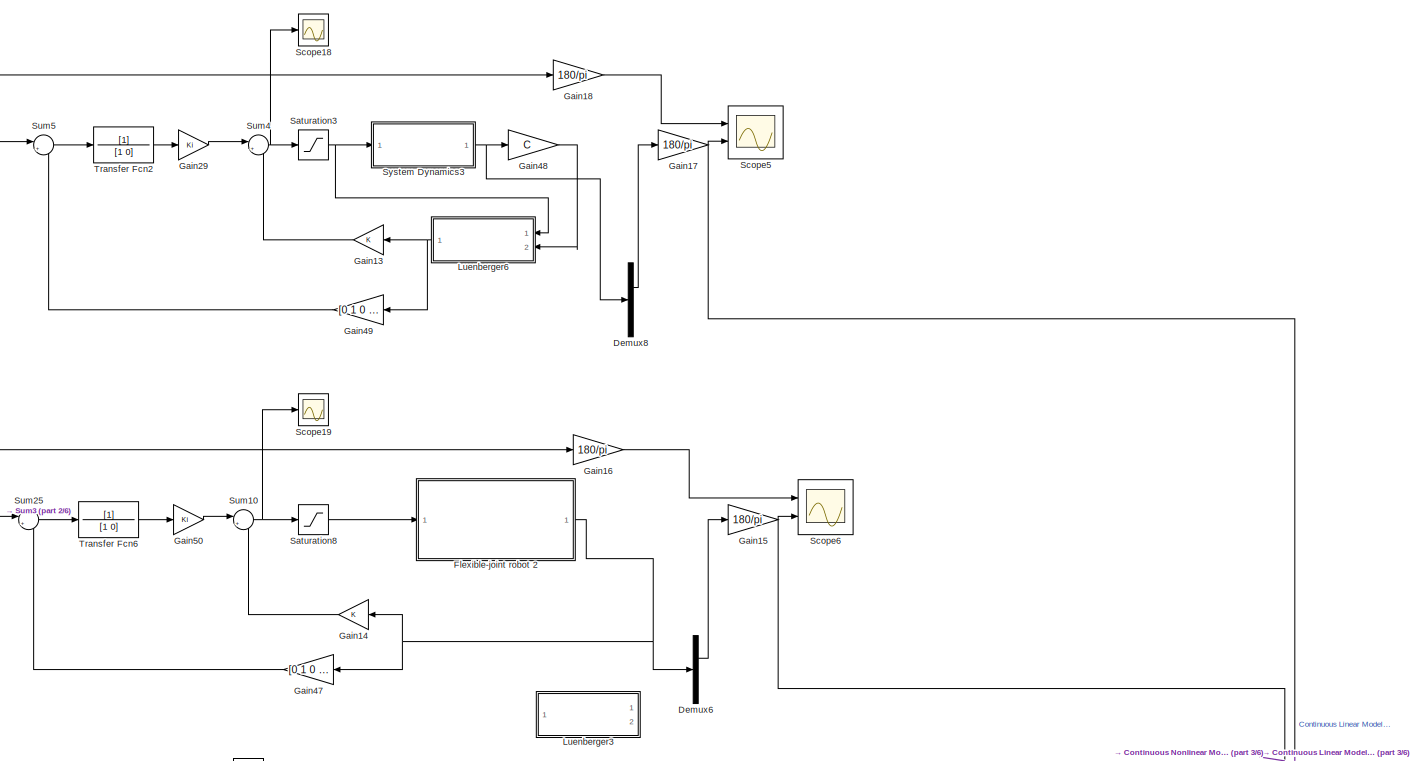
[diagram: root canvas - part 1/6, top center region]
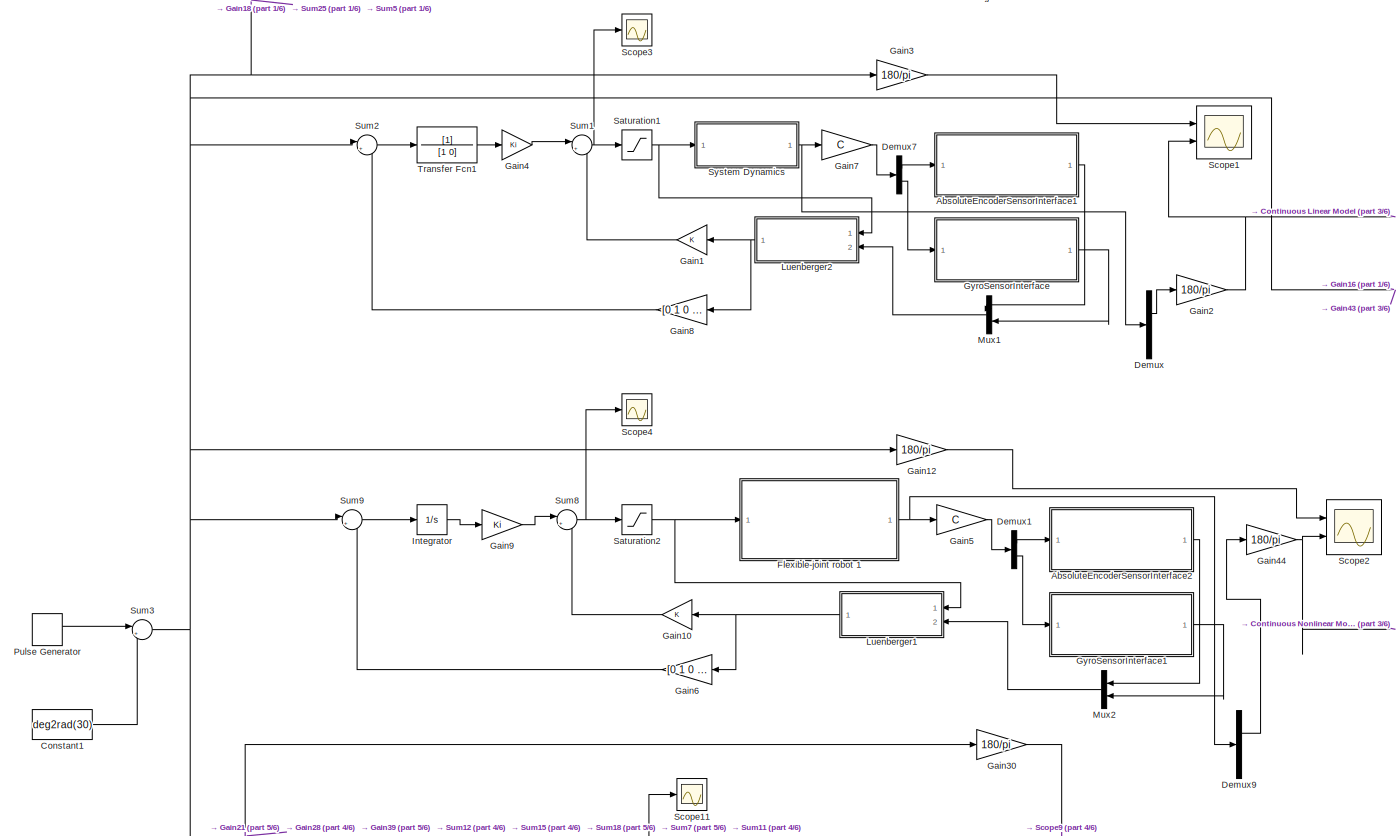
[diagram: root canvas - part 2/6, central region]
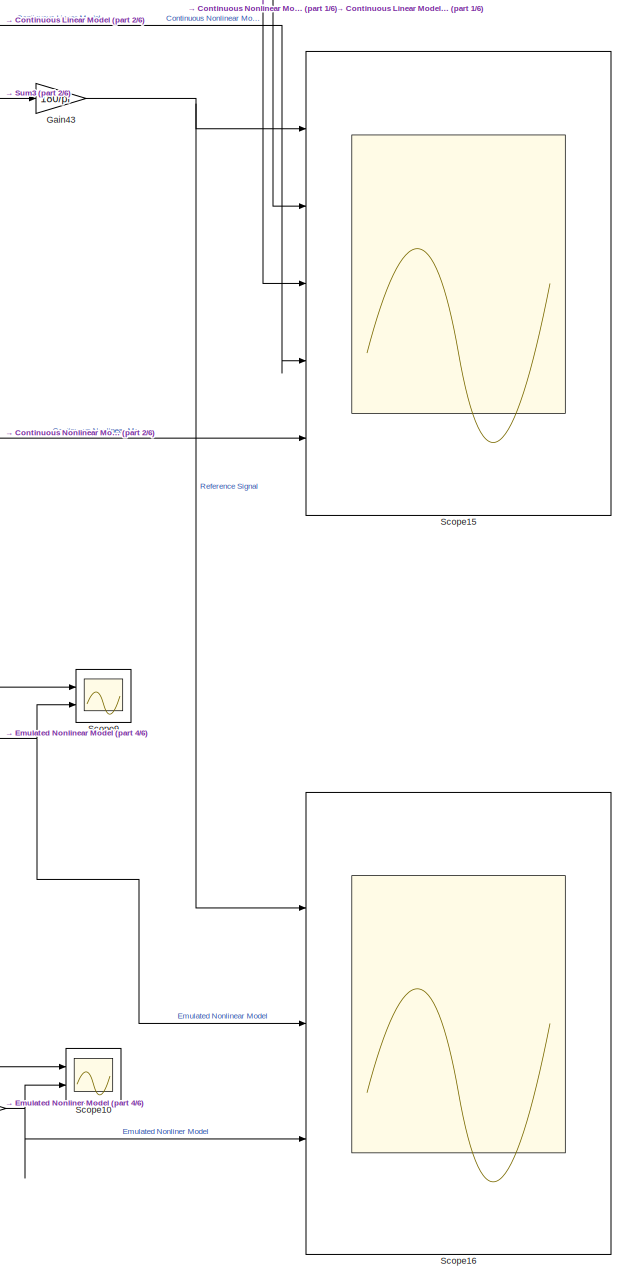
[diagram: root canvas - part 3/6, middle right region]
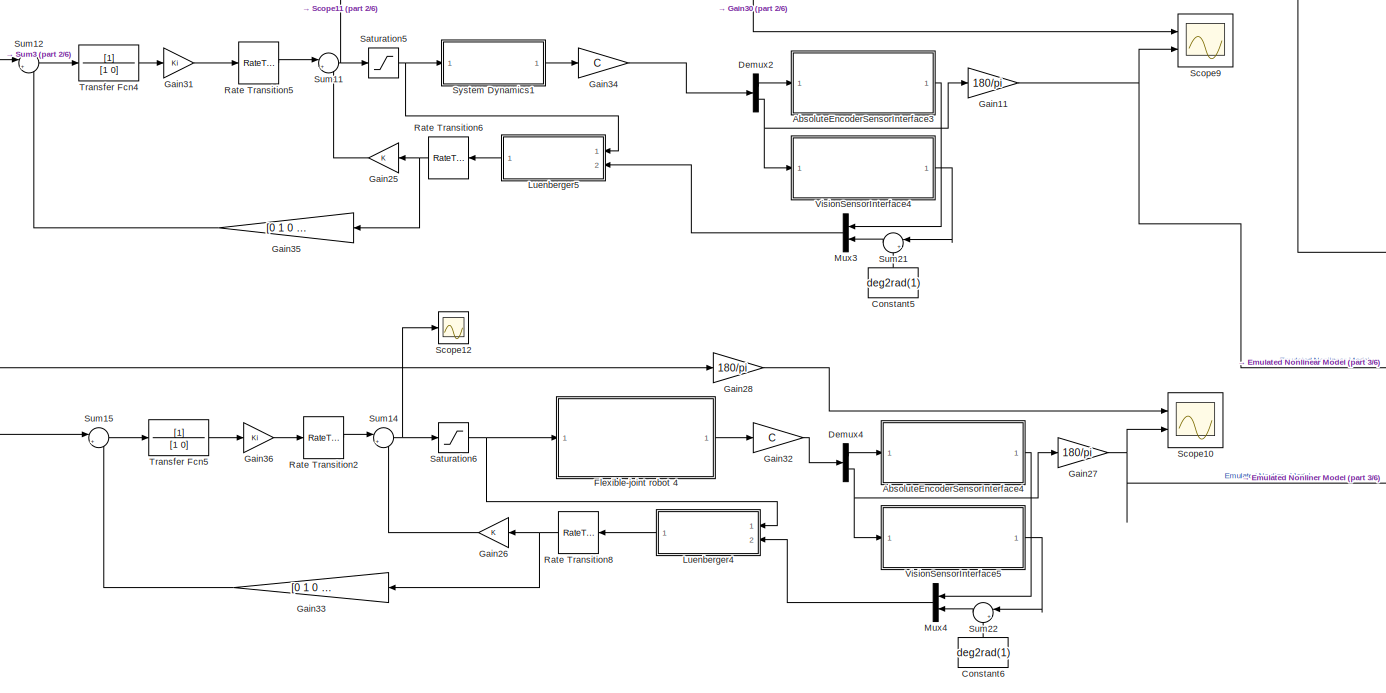
[diagram: root canvas - part 4/6, central region]
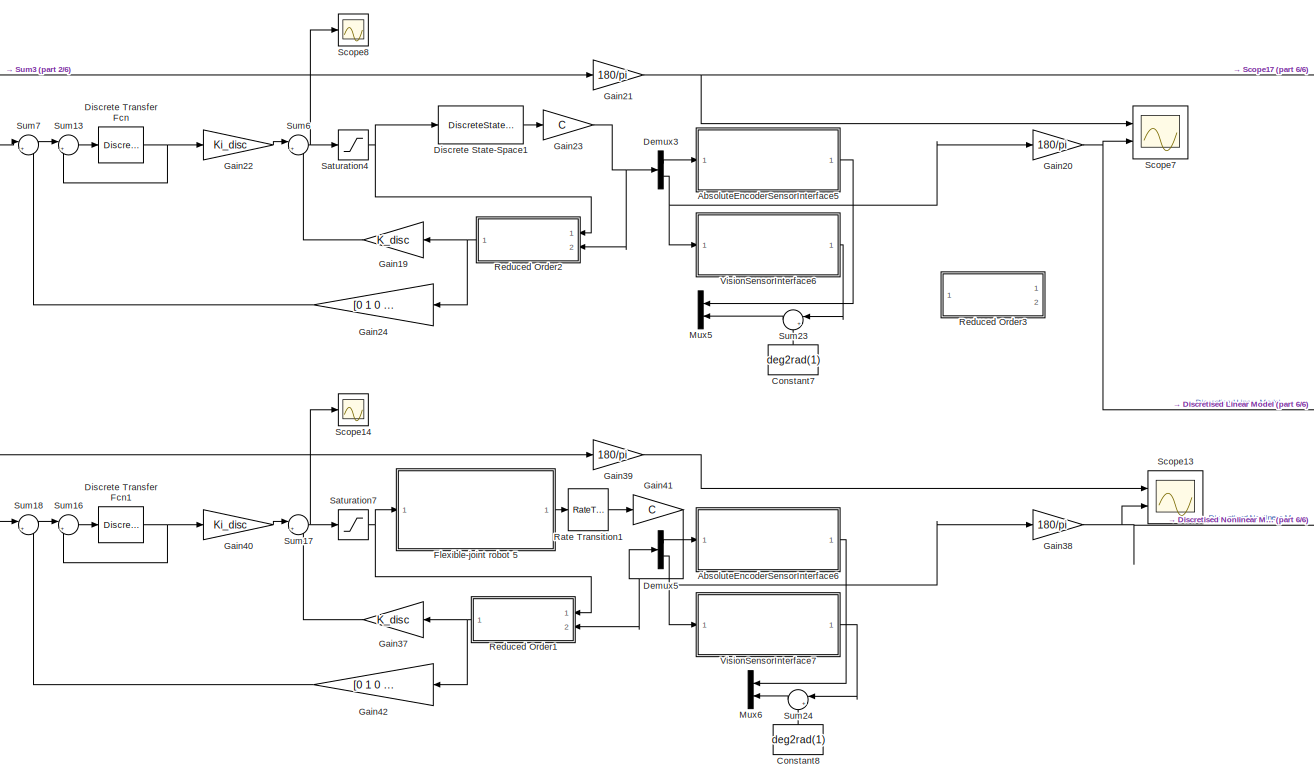
[diagram: root canvas - part 5/6, bottom center region]
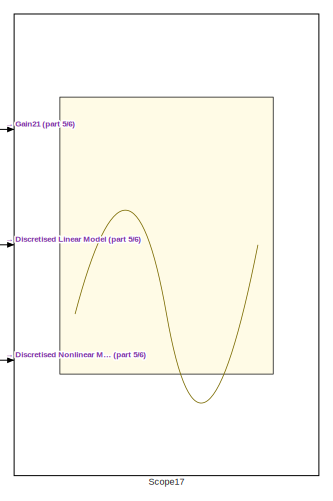
[diagram: root canvas - part 6/6, bottom right region]
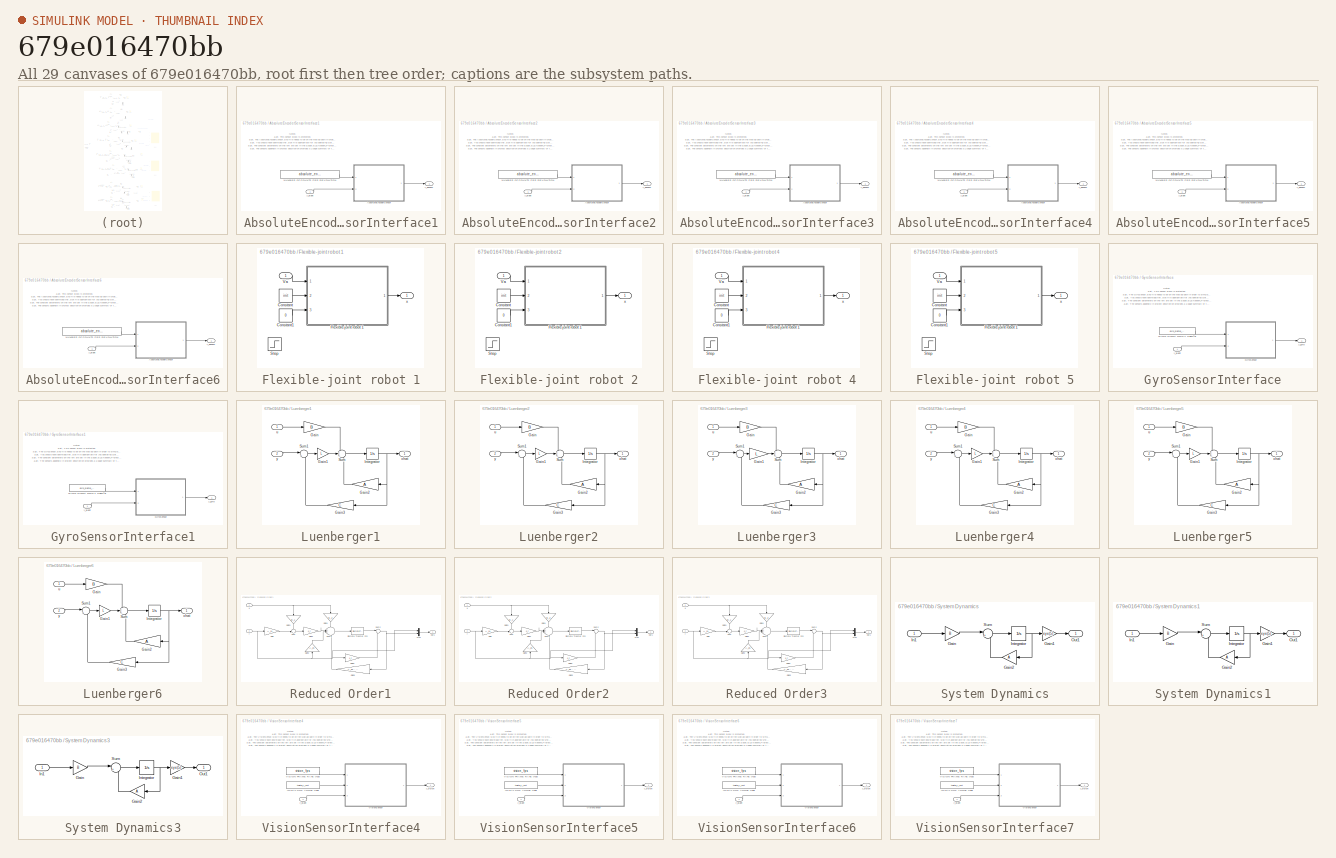
[diagram: thumbnail index - all 29 canvases of the model, root first then tree order]
MODEL slx_679e016470bb
KIND model
CONFIG AbsTol = auto
CONFIG EnableMultiTasking = off
CONFIG FixedStep = auto
CONFIG MaxStep = auto
CONFIG MinStep = auto
CONFIG RelTol = 1e-3
CONFIG SampleTimeConstraint = Unconstrained
CONFIG SolverName = ode45
CONFIG StartTime = 0.0
CONFIG StopTime = 20
BLOCK [SubSystem] AbsoluteEncoderSensorInterface1
  Ports = [1, 1]
  RequestExecContextInheritance = off
  TreatAsAtomicUnit = on
BLOCK [ModelReference] AbsoluteEncoderSensorInterface1/AbsoluteEncoderSensor
  CopyOfModelProtected = on
  ModelNameDialog = AbsoluteEncoderSensor.slxp
  ModelReferenceVersion = 1.16
  Ports = [2, 1]
BLOCK [Constant] AbsoluteEncoderSensorInterface1/NUMBER OF COUNTS PER REVOLUTION
  Value = absolute_encoder_counts_per_revolution
BLOCK [Outport] AbsoluteEncoderSensorInterface1/y_absenc
BLOCK [Inport] AbsoluteEncoderSensorInterface1/y_plant
BLOCK [SubSystem] AbsoluteEncoderSensorInterface2
  Ports = [1, 1]
  RequestExecContextInheritance = off
  TreatAsAtomicUnit = on
BLOCK [ModelReference] AbsoluteEncoderSensorInterface2/AbsoluteEncoderSensor
  CopyOfModelProtected = on
  ModelNameDialog = AbsoluteEncoderSensor.slxp
  ModelReferenceVersion = 1.16
  Ports = [2, 1]
BLOCK [Constant] AbsoluteEncoderSensorInterface2/NUMBER OF COUNTS PER REVOLUTION
  Value = absolute_encoder_counts_per_revolution
BLOCK [Outport] AbsoluteEncoderSensorInterface2/y_absenc
BLOCK [Inport] AbsoluteEncoderSensorInterface2/y_plant
BLOCK [SubSystem] AbsoluteEncoderSensorInterface3
  Commented = on
  Ports = [1, 1]
  RequestExecContextInheritance = off
  TreatAsAtomicUnit = on
BLOCK [ModelReference] AbsoluteEncoderSensorInterface3/AbsoluteEncoderSensor
  CopyOfModelProtected = on
  ModelNameDialog = AbsoluteEncoderSensor.slxp
  ModelReferenceVersion = 1.16
  Ports = [2, 1]
BLOCK [Constant] AbsoluteEncoderSensorInterface3/NUMBER OF COUNTS PER REVOLUTION
  Value = absolute_encoder_counts_per_revolution
BLOCK [Outport] AbsoluteEncoderSensorInterface3/y_absenc
BLOCK [Inport] AbsoluteEncoderSensorInterface3/y_plant
BLOCK [SubSystem] AbsoluteEncoderSensorInterface4
  Commented = on
  Ports = [1, 1]
  RequestExecContextInheritance = off
  TreatAsAtomicUnit = on
BLOCK [ModelReference] AbsoluteEncoderSensorInterface4/AbsoluteEncoderSensor
  CopyOfModelProtected = on
  ModelNameDialog = AbsoluteEncoderSensor.slxp
  ModelReferenceVersion = 1.16
  Ports = [2, 1]
BLOCK [Constant] AbsoluteEncoderSensorInterface4/NUMBER OF COUNTS PER REVOLUTION
  Value = absolute_encoder_counts_per_revolution
BLOCK [Outport] AbsoluteEncoderSensorInterface4/y_absenc
BLOCK [Inport] AbsoluteEncoderSensorInterface4/y_plant
BLOCK [SubSystem] AbsoluteEncoderSensorInterface5
  Commented = on
  Ports = [1, 1]
  RequestExecContextInheritance = off
  TreatAsAtomicUnit = on
BLOCK [ModelReference] AbsoluteEncoderSensorInterface5/AbsoluteEncoderSensor
  CopyOfModelProtected = on
  ModelNameDialog = AbsoluteEncoderSensor.slxp
  ModelReferenceVersion = 1.16
  Ports = [2, 1]
BLOCK [Constant] AbsoluteEncoderSensorInterface5/NUMBER OF COUNTS PER REVOLUTION
  Value = absolute_encoder_counts_per_revolution
BLOCK [Outport] AbsoluteEncoderSensorInterface5/y_absenc
BLOCK [Inport] AbsoluteEncoderSensorInterface5/y_plant
BLOCK [SubSystem] AbsoluteEncoderSensorInterface6
  Commented = on
  Ports = [1, 1]
  RequestExecContextInheritance = off
  TreatAsAtomicUnit = on
BLOCK [ModelReference] AbsoluteEncoderSensorInterface6/AbsoluteEncoderSensor
  CopyOfModelProtected = on
  ModelNameDialog = AbsoluteEncoderSensor.slxp
  ModelReferenceVersion = 1.16
  Ports = [2, 1]
BLOCK [Constant] AbsoluteEncoderSensorInterface6/NUMBER OF COUNTS PER REVOLUTION
  Value = absolute_encoder_counts_per_revolution
BLOCK [Outport] AbsoluteEncoderSensorInterface6/y_absenc
BLOCK [Inport] AbsoluteEncoderSensorInterface6/y_plant
BLOCK [Constant] Constant1
  Value = deg2rad(30)
BLOCK [Constant] Constant5
  Commented = on
  NameLocation = right
  Value = deg2rad(1)
BLOCK [Constant] Constant6
  Commented = on
  NameLocation = right
  Value = deg2rad(1)
BLOCK [Constant] Constant7
  Commented = on
  NameLocation = right
  Value = deg2rad(1)
BLOCK [Constant] Constant8
  Commented = on
  NameLocation = right
  Value = deg2rad(1)
BLOCK [Demux] Demux
  Outputs = 5
  Ports = [1, 5]
BLOCK [Demux] Demux1
  Outputs = 2
  Ports = [1, 2]
BLOCK [Demux] Demux2
  Commented = on
  Outputs = 2
  Ports = [1, 2]
BLOCK [Demux] Demux3
  Commented = on
  Outputs = 2
  Ports = [1, 2]
BLOCK [Demux] Demux4
  Commented = on
  Outputs = 2
  Ports = [1, 2]
BLOCK [Demux] Demux5
  Commented = on
  Outputs = 2
  Ports = [1, 2]
BLOCK [Demux] Demux6
  Outputs = 5
  Ports = [1, 5]
BLOCK [Demux] Demux7
  Outputs = 2
  Ports = [1, 2]
BLOCK [Demux] Demux8
  Outputs = 5
  Ports = [1, 5]
BLOCK [Demux] Demux9
  Outputs = 5
  Ports = [1, 5]
BLOCK [DiscreteStateSpace] Discrete State-Space1
  A = Dp.a
  B = Dp.b
  C = Dp.c
  Commented = on
  D = Dp.d
  SampleTime = T
BLOCK [DiscreteTransferFcn] Discrete Transfer Fcn
  Commented = on
  Denominator = [1 0]
  InputPortMap = u0
  Ports = [1, 1]
BLOCK [DiscreteTransferFcn] Discrete Transfer Fcn1
  Commented = on
  Denominator = [1 0]
  InputPortMap = u0
  Ports = [1, 1]
BLOCK [SubSystem] Flexible-joint robot 1
  Ports = [1, 1]
  RequestExecContextInheritance = off
BLOCK [Constant] Flexible-joint robot 1/Constant
  Value = init
BLOCK [Constant] Flexible-joint robot 1/Constant1
  Value = 0
BLOCK [ModelReference] Flexible-joint robot 1/Flexible-joint robot 1
  CopyOfModelProtected = on
  ModelNameDialog = Flexible_joint_robot_1
  ModelReferenceVersion = 1.63
  Ports = [3, 1]
BLOCK [Step] Flexible-joint robot 1/Step
  After = 0.05
  SampleTime = 0
BLOCK [Inport] Flexible-joint robot 1/Va
BLOCK [Outport] Flexible-joint robot 1/x
BLOCK [SubSystem] Flexible-joint robot 2
  Ports = [1, 1]
  RequestExecContextInheritance = off
BLOCK [Constant] Flexible-joint robot 2/Constant
  Value = init
BLOCK [Constant] Flexible-joint robot 2/Constant1
  Value = 0
BLOCK [ModelReference] Flexible-joint robot 2/Flexible-joint robot 1
  CopyOfModelProtected = on
  ModelNameDialog = Flexible_joint_robot_1
  ModelReferenceVersion = 1.63
  Ports = [3, 1]
BLOCK [Step] Flexible-joint robot 2/Step
  After = 0.05
  SampleTime = 0
BLOCK [Inport] Flexible-joint robot 2/Va
BLOCK [Outport] Flexible-joint robot 2/x
BLOCK [SubSystem] Flexible-joint robot 4
  Commented = on
  Ports = [1, 1]
  RequestExecContextInheritance = off
BLOCK [Constant] Flexible-joint robot 4/Constant
  Value = init
BLOCK [Constant] Flexible-joint robot 4/Constant1
  Value = 0
BLOCK [ModelReference] Flexible-joint robot 4/Flexible-joint robot 1
  CopyOfModelProtected = on
  ModelNameDialog = Flexible_joint_robot_1
  ModelReferenceVersion = 1.63
  Ports = [3, 1]
BLOCK [Step] Flexible-joint robot 4/Step
  After = 0.05
  SampleTime = 0
BLOCK [Inport] Flexible-joint robot 4/Va
BLOCK [Outport] Flexible-joint robot 4/x
BLOCK [SubSystem] Flexible-joint robot 5
  Commented = on
  Ports = [1, 1]
  RequestExecContextInheritance = off
BLOCK [Constant] Flexible-joint robot 5/Constant
  Value = init
BLOCK [Constant] Flexible-joint robot 5/Constant1
  Value = 0
BLOCK [ModelReference] Flexible-joint robot 5/Flexible-joint robot 1
  CopyOfModelProtected = on
  ModelNameDialog = Flexible_joint_robot_1
  ModelReferenceVersion = 1.63
  Ports = [3, 1]
BLOCK [Step] Flexible-joint robot 5/Step
  After = 0.05
  SampleTime = 0
BLOCK [Inport] Flexible-joint robot 5/Va
BLOCK [Outport] Flexible-joint robot 5/x
BLOCK [Gain] Gain1
  Gain = K
  Multiplication = Matrix(K*u)
  NameLocation = top
BLOCK [Gain] Gain10
  Gain = K
  Multiplication = Matrix(K*u)
  NameLocation = top
BLOCK [Gain] Gain11
  Commented = on
  Gain = 180/pi
BLOCK [Gain] Gain12
  Gain = 180/pi
BLOCK [Gain] Gain13
  Gain = K
  Multiplication = Matrix(K*u)
  NameLocation = top
BLOCK [Gain] Gain14
  Gain = K
  Multiplication = Matrix(K*u)
  NameLocation = top
BLOCK [Gain] Gain15
  Gain = 180/pi
BLOCK [Gain] Gain16
  Gain = 180/pi
BLOCK [Gain] Gain17
  Gain = 180/pi
BLOCK [Gain] Gain18
  Gain = 180/pi
BLOCK [Gain] Gain19
  Commented = on
  Gain = K_disc
  Multiplication = Matrix(K*u)
  NameLocation = top
BLOCK [Gain] Gain2
  Gain = 180/pi
BLOCK [Gain] Gain20
  Commented = on
  Gain = 180/pi
BLOCK [Gain] Gain21
  Commented = on
  Gain = 180/pi
BLOCK [Gain] Gain22
  Commented = on
  Gain = Ki_disc
  Multiplication = Matrix(K*u)
BLOCK [Gain] Gain23
  Commented = on
  Gain = C
  Multiplication = Matrix(K*u)
BLOCK [Gain] Gain24
  Commented = on
  Gain = [0 1 0 0 0]
  Multiplication = Matrix(K*u)
  NameLocation = top
BLOCK [Gain] Gain25
  Commented = on
  Gain = K
  Multiplication = Matrix(K*u)
  NameLocation = top
BLOCK [Gain] Gain26
  Commented = on
  Gain = K
  Multiplication = Matrix(K*u)
  NameLocation = top
BLOCK [Gain] Gain27
  Commented = on
  Gain = 180/pi
BLOCK [Gain] Gain28
  Commented = on
  Gain = 180/pi
BLOCK [Gain] Gain29
  Gain = Ki
  Multiplication = Matrix(K*u)
BLOCK [Gain] Gain3
  Gain = 180/pi
BLOCK [Gain] Gain30
  Commented = on
  Gain = 180/pi
BLOCK [Gain] Gain31
  Commented = on
  Gain = Ki
  Multiplication = Matrix(K*u)
BLOCK [Gain] Gain32
  Commented = on
  Gain = C
  Multiplication = Matrix(K*u)
BLOCK [Gain] Gain33
  Commented = on
  Gain = [0 1 0 0 0]
  Multiplication = Matrix(K*u)
  NameLocation = top
BLOCK [Gain] Gain34
  Commented = on
  Gain = C
  Multiplication = Matrix(K*u)
BLOCK [Gain] Gain35
  Commented = on
  Gain = [0 1 0 0 0]
  Multiplication = Matrix(K*u)
  NameLocation = top
BLOCK [Gain] Gain36
  Commented = on
  Gain = Ki
  Multiplication = Matrix(K*u)
BLOCK [Gain] Gain37
  Commented = on
  Gain = K_disc
  Multiplication = Matrix(K*u)
  NameLocation = top
BLOCK [Gain] Gain38
  Commented = on
  Gain = 180/pi
BLOCK [Gain] Gain39
  Commented = on
  Gain = 180/pi
BLOCK [Gain] Gain4
  Gain = Ki
  Multiplication = Matrix(K*u)
BLOCK [Gain] Gain40
  Commented = on
  Gain = Ki_disc
  Multiplication = Matrix(K*u)
BLOCK [Gain] Gain41
  Commented = on
  Gain = C
  Multiplication = Matrix(K*u)
BLOCK [Gain] Gain42
  Commented = on
  Gain = [0 1 0 0 0]
  Multiplication = Matrix(K*u)
  NameLocation = top
BLOCK [Gain] Gain43
  Gain = 180/pi
BLOCK [Gain] Gain44
  Gain = 180/pi
BLOCK [Gain] Gain47
  Gain = [0 1 0 0 0]
  Multiplication = Matrix(K*u)
  NameLocation = top
BLOCK [Gain] Gain48
  Gain = C
  Multiplication = Matrix(K*u)
BLOCK [Gain] Gain49
  Gain = [0 1 0 0 0]
  Multiplication = Matrix(K*u)
  NameLocation = top
BLOCK [Gain] Gain5
  Gain = C
  Multiplication = Matrix(K*u) (u vector)
BLOCK [Gain] Gain50
  Gain = Ki
  Multiplication = Matrix(K*u)
BLOCK [Gain] Gain6
  Gain = [0 1 0 0 0]
  Multiplication = Matrix(K*u)
  NameLocation = top
BLOCK [Gain] Gain7
  Gain = C
  Multiplication = Matrix(K*u)
BLOCK [Gain] Gain8
  Gain = [0 1 0 0 0]
  Multiplication = Matrix(K*u)
  NameLocation = top
BLOCK [Gain] Gain9
  Gain = Ki
  Multiplication = Matrix(K*u) (u vector)
BLOCK [SubSystem] GyroSensorInterface
  Ports = [1, 1]
  RequestExecContextInheritance = off
  TreatAsAtomicUnit = on
BLOCK [Constant] GyroSensorInterface/GYRO SIGMA DRIFT [rad//s^2]
  Value = gyro_sigma_drift
BLOCK [ModelReference] GyroSensorInterface/GyroSensor
  CopyOfModelProtected = on
  ModelNameDialog = GyroSensor.slxp
  ModelReferenceVersion = 1.18
  Ports = [2, 1]
BLOCK [Outport] GyroSensorInterface/y_gyro
BLOCK [Inport] GyroSensorInterface/y_plant
BLOCK [SubSystem] GyroSensorInterface1
  Ports = [1, 1]
  RequestExecContextInheritance = off
  TreatAsAtomicUnit = on
BLOCK [Constant] GyroSensorInterface1/GYRO SIGMA DRIFT [rad//s^2]
  Value = gyro_sigma_drift
BLOCK [ModelReference] GyroSensorInterface1/GyroSensor
  CopyOfModelProtected = on
  ModelNameDialog = GyroSensor.slxp
  ModelReferenceVersion = 1.18
  Ports = [2, 1]
BLOCK [Outport] GyroSensorInterface1/y_gyro
BLOCK [Inport] GyroSensorInterface1/y_plant
BLOCK [Integrator] Integrator
  Ports = [1, 1]
BLOCK [SubSystem] Luenberger1
  Ports = [2, 1]
  RequestExecContextInheritance = off
  TreatAsAtomicUnit = on
BLOCK [Gain] Luenberger1/Gain
  Gain = B
  Multiplication = Matrix(K*u) (u vector)
BLOCK [Gain] Luenberger1/Gain1
  Gain = L
  Multiplication = Matrix(K*u) (u vector)
BLOCK [Gain] Luenberger1/Gain2
  Gain = A
  Multiplication = Matrix(K*u) (u vector)
  NameLocation = top
BLOCK [Gain] Luenberger1/Gain3
  Gain = C
  Multiplication = Matrix(K*u) (u vector)
  NameLocation = top
BLOCK [Integrator] Luenberger1/Integrator
  Ports = [1, 1]
BLOCK [Sum] Luenberger1/Sum
  Inputs = +++
  Ports = [3, 1]
BLOCK [Sum] Luenberger1/Sum1
  Inputs = |+-
  Ports = [2, 1]
BLOCK [Inport] Luenberger1/u
BLOCK [Outport] Luenberger1/xhat
BLOCK [Inport] Luenberger1/y
  Port = 2
BLOCK [SubSystem] Luenberger2
  Ports = [2, 1]
  RequestExecContextInheritance = off
  TreatAsAtomicUnit = on
BLOCK [Gain] Luenberger2/Gain
  Gain = B
  Multiplication = Matrix(K*u) (u vector)
BLOCK [Gain] Luenberger2/Gain1
  Gain = L
  Multiplication = Matrix(K*u) (u vector)
BLOCK [Gain] Luenberger2/Gain2
  Gain = A
  Multiplication = Matrix(K*u) (u vector)
  NameLocation = top
BLOCK [Gain] Luenberger2/Gain3
  Gain = C
  Multiplication = Matrix(K*u) (u vector)
  NameLocation = top
BLOCK [Integrator] Luenberger2/Integrator
  Ports = [1, 1]
BLOCK [Sum] Luenberger2/Sum
  Inputs = +++
  Ports = [3, 1]
BLOCK [Sum] Luenberger2/Sum1
  Inputs = |+-
  Ports = [2, 1]
BLOCK [Inport] Luenberger2/u
BLOCK [Outport] Luenberger2/xhat
BLOCK [Inport] Luenberger2/y
  Port = 2
BLOCK [SubSystem] Luenberger3
  Ports = [2, 1]
  RequestExecContextInheritance = off
  TreatAsAtomicUnit = on
BLOCK [Gain] Luenberger3/Gain
  Gain = B
  Multiplication = Matrix(K*u) (u vector)
BLOCK [Gain] Luenberger3/Gain1
  Gain = L
  Multiplication = Matrix(K*u) (u vector)
BLOCK [Gain] Luenberger3/Gain2
  Gain = A
  Multiplication = Matrix(K*u) (u vector)
  NameLocation = top
BLOCK [Gain] Luenberger3/Gain3
  Gain = C
  Multiplication = Matrix(K*u) (u vector)
  NameLocation = top
BLOCK [Integrator] Luenberger3/Integrator
  Ports = [1, 1]
BLOCK [Sum] Luenberger3/Sum
  Inputs = +++
  Ports = [3, 1]
BLOCK [Sum] Luenberger3/Sum1
  Inputs = |+-
  Ports = [2, 1]
BLOCK [Inport] Luenberger3/u
BLOCK [Outport] Luenberger3/xhat
BLOCK [Inport] Luenberger3/y
  Port = 2
BLOCK [SubSystem] Luenberger4
  Commented = on
  Ports = [2, 1]
  RequestExecContextInheritance = off
  TreatAsAtomicUnit = on
BLOCK [Gain] Luenberger4/Gain
  Gain = B
  Multiplication = Matrix(K*u) (u vector)
BLOCK [Gain] Luenberger4/Gain1
  Gain = L
  Multiplication = Matrix(K*u) (u vector)
BLOCK [Gain] Luenberger4/Gain2
  Gain = A
  Multiplication = Matrix(K*u) (u vector)
  NameLocation = top
BLOCK [Gain] Luenberger4/Gain3
  Gain = C
  Multiplication = Matrix(K*u) (u vector)
  NameLocation = top
BLOCK [Integrator] Luenberger4/Integrator
  Ports = [1, 1]
BLOCK [Sum] Luenberger4/Sum
  Inputs = +++
  Ports = [3, 1]
BLOCK [Sum] Luenberger4/Sum1
  Inputs = |+-
  Ports = [2, 1]
BLOCK [Inport] Luenberger4/u
BLOCK [Outport] Luenberger4/xhat
BLOCK [Inport] Luenberger4/y
  Port = 2
BLOCK [SubSystem] Luenberger5
  Commented = on
  Ports = [2, 1]
  RequestExecContextInheritance = off
  TreatAsAtomicUnit = on
BLOCK [Gain] Luenberger5/Gain
  Gain = B
  Multiplication = Matrix(K*u) (u vector)
BLOCK [Gain] Luenberger5/Gain1
  Gain = L
  Multiplication = Matrix(K*u) (u vector)
BLOCK [Gain] Luenberger5/Gain2
  Gain = A
  Multiplication = Matrix(K*u) (u vector)
  NameLocation = top
BLOCK [Gain] Luenberger5/Gain3
  Gain = C
  Multiplication = Matrix(K*u) (u vector)
  NameLocation = top
BLOCK [Integrator] Luenberger5/Integrator
  Ports = [1, 1]
BLOCK [Sum] Luenberger5/Sum
  Inputs = +++
  Ports = [3, 1]
BLOCK [Sum] Luenberger5/Sum1
  Inputs = |+-
  Ports = [2, 1]
BLOCK [Inport] Luenberger5/u
BLOCK [Outport] Luenberger5/xhat
BLOCK [Inport] Luenberger5/y
  Port = 2
BLOCK [SubSystem] Luenberger6
  Ports = [2, 1]
  RequestExecContextInheritance = off
  TreatAsAtomicUnit = on
BLOCK [Gain] Luenberger6/Gain
  Gain = B
  Multiplication = Matrix(K*u) (u vector)
BLOCK [Gain] Luenberger6/Gain1
  Gain = L
  Multiplication = Matrix(K*u) (u vector)
BLOCK [Gain] Luenberger6/Gain2
  Gain = A
  Multiplication = Matrix(K*u) (u vector)
  NameLocation = top
BLOCK [Gain] Luenberger6/Gain3
  Gain = C
  Multiplication = Matrix(K*u) (u vector)
  NameLocation = top
BLOCK [Integrator] Luenberger6/Integrator
  Ports = [1, 1]
BLOCK [Sum] Luenberger6/Sum
  Inputs = +++
  Ports = [3, 1]
BLOCK [Sum] Luenberger6/Sum1
  Inputs = |+-
  Ports = [2, 1]
BLOCK [Inport] Luenberger6/u
BLOCK [Outport] Luenberger6/xhat
BLOCK [Inport] Luenberger6/y
  Port = 2
BLOCK [Mux] Mux1
  DisplayOption = bar
  Inputs = 2
  NameLocation = top
  Ports = [2, 1]
BLOCK [Mux] Mux2
  DisplayOption = bar
  Inputs = 2
  NameLocation = top
  Ports = [2, 1]
BLOCK [Mux] Mux3
  Commented = on
  DisplayOption = bar
  Inputs = 2
  NameLocation = top
  Ports = [2, 1]
BLOCK [Mux] Mux4
  Commented = on
  DisplayOption = bar
  Inputs = 2
  NameLocation = top
  Ports = [2, 1]
BLOCK [Mux] Mux5
  Commented = on
  DisplayOption = bar
  Inputs = 2
  NameLocation = top
  Ports = [2, 1]
BLOCK [Mux] Mux6
  Commented = on
  DisplayOption = bar
  Inputs = 2
  NameLocation = top
  Ports = [2, 1]
BLOCK [DiscretePulseGenerator] Pulse Generator
  Amplitude = deg2rad(30)
  Period = 5
  Ports = [0, 1]
  PulseType = Time based
  PulseWidth = 50
BLOCK [RateTransition] Rate Transition1
  Commented = on
  OutPortSampleTime = T
BLOCK [RateTransition] Rate Transition2
  Commented = on
  OutPortSampleTime = T
BLOCK [RateTransition] Rate Transition5
  Commented = on
  OutPortSampleTime = T
BLOCK [RateTransition] Rate Transition6
  Commented = on
  NameLocation = top
  OutPortSampleTime = T
BLOCK [RateTransition] Rate Transition8
  Commented = on
  NameLocation = top
  OutPortSampleTime = T
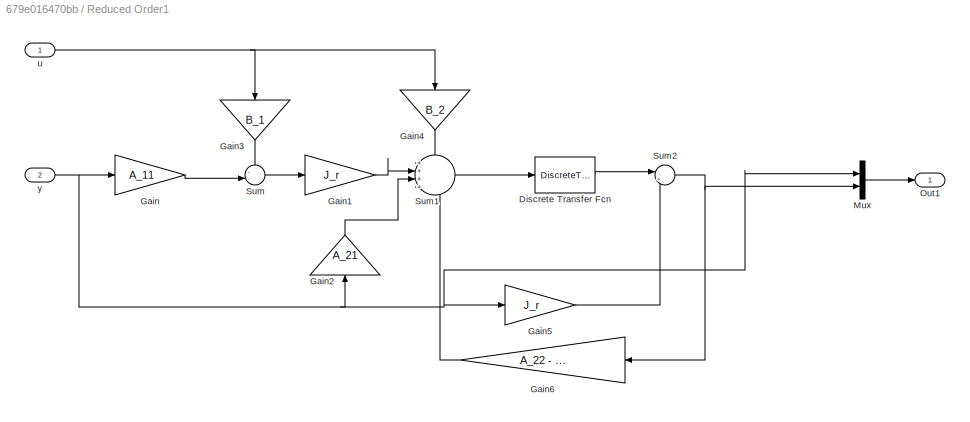
BLOCK [SubSystem] Reduced Order1
  Commented = on
  Ports = [2, 1]
  RequestExecContextInheritance = off
  TreatAsAtomicUnit = on
BLOCK [DiscreteTransferFcn] Reduced Order1/Discrete Transfer Fcn
  Denominator = [1 0]
  InputPortMap = u0
  Ports = [1, 1]
BLOCK [Gain] Reduced Order1/Gain
  Gain = A_11
  Multiplication = Matrix(K*u) (u vector)
BLOCK [Gain] Reduced Order1/Gain1
  Gain = J_r
  Multiplication = Matrix(K*u) (u vector)
BLOCK [Gain] Reduced Order1/Gain2
  Gain = A_21
  Multiplication = Matrix(K*u) (u vector)
  NameLocation = right
BLOCK [Gain] Reduced Order1/Gain3
  Gain = B_1
  Multiplication = Matrix(K*u) (u vector)
  NameLocation = left
BLOCK [Gain] Reduced Order1/Gain4
  Gain = B_2
  Multiplication = Matrix(K*u) (u vector)
  NameLocation = left
BLOCK [Gain] Reduced Order1/Gain5
  Gain = J_r
  Multiplication = Matrix(K*u) (u vector)
BLOCK [Gain] Reduced Order1/Gain6
  Gain = A_22 - J_r*A_12
  Multiplication = Matrix(K*u) (u vector)
  NameLocation = top
BLOCK [Mux] Reduced Order1/Mux
  DisplayOption = bar
  Inputs = 2
  Ports = [2, 1]
BLOCK [Outport] Reduced Order1/Out1
BLOCK [Sum] Reduced Order1/Sum
  Inputs = --|
  Ports = [2, 1]
BLOCK [Sum] Reduced Order1/Sum1
  Inputs = ++++
  Ports = [4, 1]
BLOCK [Sum] Reduced Order1/Sum2
  Inputs = |++
  Ports = [2, 1]
BLOCK [Inport] Reduced Order1/u
BLOCK [Inport] Reduced Order1/y
  Port = 2
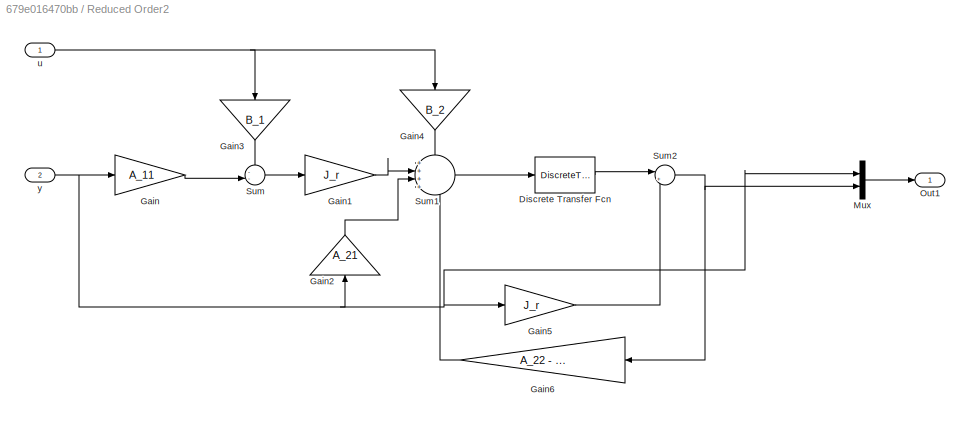
BLOCK [SubSystem] Reduced Order2
  Commented = on
  Ports = [2, 1]
  RequestExecContextInheritance = off
  TreatAsAtomicUnit = on
BLOCK [DiscreteTransferFcn] Reduced Order2/Discrete Transfer Fcn
  Denominator = [1 0]
  InputPortMap = u0
  Ports = [1, 1]
BLOCK [Gain] Reduced Order2/Gain
  Gain = A_11
  Multiplication = Matrix(K*u) (u vector)
BLOCK [Gain] Reduced Order2/Gain1
  Gain = J_r
  Multiplication = Matrix(K*u) (u vector)
BLOCK [Gain] Reduced Order2/Gain2
  Gain = A_21
  Multiplication = Matrix(K*u) (u vector)
  NameLocation = right
BLOCK [Gain] Reduced Order2/Gain3
  Gain = B_1
  Multiplication = Matrix(K*u) (u vector)
  NameLocation = left
BLOCK [Gain] Reduced Order2/Gain4
  Gain = B_2
  Multiplication = Matrix(K*u) (u vector)
  NameLocation = left
BLOCK [Gain] Reduced Order2/Gain5
  Gain = J_r
  Multiplication = Matrix(K*u) (u vector)
BLOCK [Gain] Reduced Order2/Gain6
  Gain = A_22 - J_r*A_12
  Multiplication = Matrix(K*u) (u vector)
  NameLocation = top
BLOCK [Mux] Reduced Order2/Mux
  DisplayOption = bar
  Inputs = 2
  Ports = [2, 1]
BLOCK [Outport] Reduced Order2/Out1
BLOCK [Sum] Reduced Order2/Sum
  Inputs = --|
  Ports = [2, 1]
BLOCK [Sum] Reduced Order2/Sum1
  Inputs = ++++
  Ports = [4, 1]
BLOCK [Sum] Reduced Order2/Sum2
  Inputs = |++
  Ports = [2, 1]
BLOCK [Inport] Reduced Order2/u
BLOCK [Inport] Reduced Order2/y
  Port = 2
BLOCK [SubSystem] Reduced Order3
  Commented = on
  Ports = [2, 1]
  RequestExecContextInheritance = off
  TreatAsAtomicUnit = on
BLOCK [DiscreteTransferFcn] Reduced Order3/Discrete Transfer Fcn
  Denominator = [1 0]
  InputPortMap = u0
  Ports = [1, 1]
BLOCK [Gain] Reduced Order3/Gain
  Gain = A_11
  Multiplication = Matrix(K*u) (u vector)
BLOCK [Gain] Reduced Order3/Gain1
  Gain = J_r
  Multiplication = Matrix(K*u) (u vector)
BLOCK [Gain] Reduced Order3/Gain2
  Gain = A_21
  Multiplication = Matrix(K*u) (u vector)
  NameLocation = right
BLOCK [Gain] Reduced Order3/Gain3
  Gain = B_1
  Multiplication = Matrix(K*u) (u vector)
  NameLocation = left
BLOCK [Gain] Reduced Order3/Gain4
  Gain = B_2
  Multiplication = Matrix(K*u) (u vector)
  NameLocation = left
BLOCK [Gain] Reduced Order3/Gain5
  Gain = J_r
  Multiplication = Matrix(K*u) (u vector)
BLOCK [Gain] Reduced Order3/Gain6
  Gain = A_22 - J_r*A_12
  Multiplication = Matrix(K*u) (u vector)
  NameLocation = top
BLOCK [Mux] Reduced Order3/Mux
  DisplayOption = bar
  Inputs = 2
  Ports = [2, 1]
BLOCK [Outport] Reduced Order3/Out1
BLOCK [Sum] Reduced Order3/Sum
  Inputs = --|
  Ports = [2, 1]
BLOCK [Sum] Reduced Order3/Sum1
  Inputs = ++++
  Ports = [4, 1]
BLOCK [Sum] Reduced Order3/Sum2
  Inputs = |++
  Ports = [2, 1]
BLOCK [Inport] Reduced Order3/u
BLOCK [Inport] Reduced Order3/y
  Port = 2
BLOCK [Saturate] Saturation1
  LowerLimit = -6
  UpperLimit = 6
BLOCK [Saturate] Saturation2
  LowerLimit = -6
  UpperLimit = 6
BLOCK [Saturate] Saturation3
  LowerLimit = -6
  UpperLimit = 6
BLOCK [Saturate] Saturation4
  Commented = on
  LowerLimit = -6
  UpperLimit = 6
BLOCK [Saturate] Saturation5
  Commented = on
  LowerLimit = -6
  UpperLimit = 6
BLOCK [Saturate] Saturation6
  Commented = on
  LowerLimit = -6
  UpperLimit = 6
BLOCK [Saturate] Saturation7
  Commented = on
  LowerLimit = -6
  UpperLimit = 6
BLOCK [Saturate] Saturation8
  LowerLimit = -6
  UpperLimit = 6
BLOCK [Scope] Scope1
  Floating = off
  NumInputPorts = 2
  Ports = [2]
  ScopeSpecificationString = Simulink.scopes.TimeScopeBlockCfg('CurrentConfiguration', extmgr.ConfigurationSet(extmgr.Configuration('Core','General UI',true),extmgr.Configuration('Core','Source UI',true),extmgr.Configuration('Sources','WiredSimulink',true),extmgr.Configuration('Visuals','Time Domain',true,'SerializedDisplays',{struct('MinYLimReal','-7.50002','MaxYLimReal','67.50022','YLabelReal','','MinYLimMag','0.00000','Max...<+1427ch>
BLOCK [Scope] Scope10
  Commented = on
  Floating = off
  NumInputPorts = 2
  Ports = [2]
  ScopeSpecificationString = Simulink.scopes.TimeScopeBlockCfg('CurrentConfiguration', extmgr.ConfigurationSet(extmgr.Configuration('Core','General UI',true),extmgr.Configuration('Core','Source UI',true),extmgr.Configuration('Sources','WiredSimulink',true,'DataLoggingVariableName','ScopeData1'),extmgr.Configuration('Visuals','Time Domain',true,'SerializedDisplays',{struct('MinYLimReal','-184.24675','MaxYLimReal','255.92302','...<+1477ch>
BLOCK [Scope] Scope11
  Commented = on
  Floating = off
  NumInputPorts = 1
  Ports = [1]
  ScopeSpecificationString = Simulink.scopes.TimeScopeBlockCfg('CurrentConfiguration', extmgr.ConfigurationSet(extmgr.Configuration('Core','General UI',true),extmgr.Configuration('Core','Source UI',true),extmgr.Configuration('Sources','WiredSimulink',true,'DataLoggingVariableName','ScopeData2'),extmgr.Configuration('Visuals','Time Domain',true,'SerializedDisplays',{struct('MinYLimReal','-0.41777','MaxYLimReal','1.36119','YLab...<+1382ch>
BLOCK [Scope] Scope12
  Commented = on
  Floating = off
  NumInputPorts = 1
  Ports = [1]
  ScopeSpecificationString = Simulink.scopes.TimeScopeBlockCfg('CurrentConfiguration', extmgr.ConfigurationSet(extmgr.Configuration('Core','General UI',true),extmgr.Configuration('Core','Source UI',true),extmgr.Configuration('Sources','WiredSimulink',true,'DataLoggingVariableName','ScopeData3'),extmgr.Configuration('Visuals','Time Domain',true,'SerializedDisplays',{struct('MinYLimReal','-1.40209','MaxYLimReal','3.94809','YLab...<+1412ch>
BLOCK [Scope] Scope13
  Commented = on
  Floating = off
  NumInputPorts = 2
  Ports = [2]
  ScopeSpecificationString = Simulink.scopes.TimeScopeBlockCfg('CurrentConfiguration', extmgr.ConfigurationSet(extmgr.Configuration('Core','General UI',true),extmgr.Configuration('Core','Source UI',true),extmgr.Configuration('Sources','WiredSimulink',true,'DataLoggingVariableName','ScopeData5'),extmgr.Configuration('Visuals','Time Domain',true,'SerializedDisplays',{struct('MinYLimReal','-11.96502','MaxYLimReal','107.68517','Y...<+1477ch>
BLOCK [Scope] Scope14
  Commented = on
  Floating = off
  NumInputPorts = 1
  Ports = [1]
  ScopeSpecificationString = Simulink.scopes.TimeScopeBlockCfg('CurrentConfiguration', extmgr.ConfigurationSet(extmgr.Configuration('Core','General UI',true),extmgr.Configuration('Core','Source UI',true),extmgr.Configuration('Sources','WiredSimulink',true,'DataLoggingVariableName','ScopeData6'),extmgr.Configuration('Visuals','Time Domain',true,'SerializedDisplays',{struct('MinYLimReal','-1.74538','MaxYLimReal','15.70839','YLa...<+1386ch>
BLOCK [Scope] Scope15
  Floating = off
  NumInputPorts = 5
  Ports = [5]
  ScopeSpecificationString = Simulink.scopes.TimeScopeBlockCfg('CurrentConfiguration', extmgr.ConfigurationSet(extmgr.Configuration('Core','General UI',true,'FigureColor',[1 1 1]),extmgr.Configuration('Core','Source UI',true),extmgr.Configuration('Sources','WiredSimulink',true,'DataLoggingVariableName','ScopeData7'),extmgr.Configuration('Visuals','Time Domain',true,'SerializedDisplays',{struct('MinYLimReal','-7.77601','MaxYLi...<+2670ch>
BLOCK [Scope] Scope16
  Commented = on
  Floating = off
  NumInputPorts = 3
  Ports = [3]
  ScopeSpecificationString = Simulink.scopes.TimeScopeBlockCfg('CurrentConfiguration', extmgr.ConfigurationSet(extmgr.Configuration('Core','General UI',true,'FigureColor',[1 1 1]),extmgr.Configuration('Core','Source UI',true),extmgr.Configuration('Sources','WiredSimulink',true,'DataLoggingVariableName','ScopeData8'),extmgr.Configuration('Visuals','Time Domain',true,'SerializedDisplays',{struct('MinYLimReal','-48.68151','MaxYL...<+2607ch>
BLOCK [Scope] Scope17
  Commented = on
  Floating = off
  NumInputPorts = 3
  Ports = [3]
  ScopeSpecificationString = Simulink.scopes.TimeScopeBlockCfg('CurrentConfiguration', extmgr.ConfigurationSet(extmgr.Configuration('Core','General UI',true,'FigureColor',[1 1 1]),extmgr.Configuration('Core','Source UI',true),extmgr.Configuration('Sources','WiredSimulink',true,'DataLoggingVariableName','ScopeData9'),extmgr.Configuration('Visuals','Time Domain',true,'SerializedDisplays',{struct('MinYLimReal','-10.66417','MaxYL...<+2601ch>
BLOCK [Scope] Scope18
  Floating = off
  NumInputPorts = 1
  Ports = [1]
  ScopeSpecificationString = Simulink.scopes.TimeScopeBlockCfg('CurrentConfiguration', extmgr.ConfigurationSet(extmgr.Configuration('Core','General UI',true),extmgr.Configuration('Core','Source UI',true),extmgr.Configuration('Sources','WiredSimulink',true,'DataLoggingVariableName','ScopeData1'),extmgr.Configuration('Visuals','Time Domain',true,'SerializedDisplays',{struct('MinYLimReal','-0.41777','MaxYLimReal','1.36119','YLab...<+1382ch>
BLOCK [Scope] Scope19
  Floating = off
  NumInputPorts = 1
  Ports = [1]
  ScopeSpecificationString = Simulink.scopes.TimeScopeBlockCfg('CurrentConfiguration', extmgr.ConfigurationSet(extmgr.Configuration('Core','General UI',true),extmgr.Configuration('Core','Source UI',true),extmgr.Configuration('Sources','WiredSimulink',true,'DataLoggingVariableName','ScopeData2'),extmgr.Configuration('Visuals','Time Domain',true,'SerializedDisplays',{struct('MinYLimReal','-1.40209','MaxYLimReal','3.94809','YLab...<+1412ch>
BLOCK [Scope] Scope2
  Floating = off
  NumInputPorts = 2
  Ports = [2]
  ScopeSpecificationString = Simulink.scopes.TimeScopeBlockCfg('CurrentConfiguration', extmgr.ConfigurationSet(extmgr.Configuration('Core','General UI',true),extmgr.Configuration('Core','Source UI',true),extmgr.Configuration('Sources','WiredSimulink',true,'DataLoggingVariableName','ScopeData2'),extmgr.Configuration('Visuals','Time Domain',true,'SerializedDisplays',{struct('MinYLimReal','-7.59672','MaxYLimReal','68.37045','YLa...<+1470ch>
BLOCK [Scope] Scope3
  Floating = off
  NumInputPorts = 1
  Ports = [1]
  ScopeSpecificationString = Simulink.scopes.TimeScopeBlockCfg('CurrentConfiguration', extmgr.ConfigurationSet(extmgr.Configuration('Core','General UI',true),extmgr.Configuration('Core','Source UI',true),extmgr.Configuration('Sources','WiredSimulink',true,'DataLoggingVariableName','ScopeData1'),extmgr.Configuration('Visuals','Time Domain',true,'SerializedDisplays',{struct('MinYLimReal','-0.41777','MaxYLimReal','1.36119','YLab...<+1382ch>
BLOCK [Scope] Scope4
  Floating = off
  NumInputPorts = 1
  Ports = [1]
  ScopeSpecificationString = Simulink.scopes.TimeScopeBlockCfg('CurrentConfiguration', extmgr.ConfigurationSet(extmgr.Configuration('Core','General UI',true),extmgr.Configuration('Core','Source UI',true),extmgr.Configuration('Sources','WiredSimulink',true,'DataLoggingVariableName','ScopeData3'),extmgr.Configuration('Visuals','Time Domain',true,'SerializedDisplays',{struct('MinYLimReal','-1.40209','MaxYLimReal','3.94809','YLab...<+1411ch>
BLOCK [Scope] Scope5
  Floating = off
  NumInputPorts = 2
  Ports = [2]
  ScopeSpecificationString = Simulink.scopes.TimeScopeBlockCfg('CurrentConfiguration', extmgr.ConfigurationSet(extmgr.Configuration('Core','General UI',true),extmgr.Configuration('Core','Source UI',true),extmgr.Configuration('Sources','WiredSimulink',true,'DataLoggingVariableName','ScopeData3'),extmgr.Configuration('Visuals','Time Domain',true,'SerializedDisplays',{struct('MinYLimReal','-7.50002','MaxYLimReal','67.50022','YLa...<+1466ch>
BLOCK [Scope] Scope6
  Floating = off
  NumInputPorts = 2
  Ports = [2]
  ScopeSpecificationString = Simulink.scopes.TimeScopeBlockCfg('CurrentConfiguration', extmgr.ConfigurationSet(extmgr.Configuration('Core','General UI',true),extmgr.Configuration('Core','Source UI',true),extmgr.Configuration('Sources','WiredSimulink',true,'DataLoggingVariableName','ScopeData4'),extmgr.Configuration('Visuals','Time Domain',true,'SerializedDisplays',{struct('MinYLimReal','-7.59672','MaxYLimReal','68.37045','YLa...<+1481ch>
BLOCK [Scope] Scope7
  Commented = on
  Floating = off
  NumInputPorts = 2
  Ports = [2]
  ScopeSpecificationString = Simulink.scopes.TimeScopeBlockCfg('CurrentConfiguration', extmgr.ConfigurationSet(extmgr.Configuration('Core','General UI',true),extmgr.Configuration('Core','Source UI',true),extmgr.Configuration('Sources','WiredSimulink',true,'DataLoggingVariableName','ScopeData1'),extmgr.Configuration('Visuals','Time Domain',true,'SerializedDisplays',{struct('MinYLimReal','-9.94663','MaxYLimReal','89.51965','YLa...<+1469ch>
BLOCK [Scope] Scope8
  Commented = on
  Floating = off
  NumInputPorts = 1
  Ports = [1]
  ScopeSpecificationString = Simulink.scopes.TimeScopeBlockCfg('CurrentConfiguration', extmgr.ConfigurationSet(extmgr.Configuration('Core','General UI',true),extmgr.Configuration('Core','Source UI',true),extmgr.Configuration('Sources','WiredSimulink',true,'DataLoggingVariableName','ScopeData2'),extmgr.Configuration('Visuals','Time Domain',true,'SerializedDisplays',{struct('MinYLimReal','-1.74538','MaxYLimReal','15.70839','YLa...<+1386ch>
BLOCK [Scope] Scope9
  Commented = on
  Floating = off
  NumInputPorts = 2
  Ports = [2]
  ScopeSpecificationString = Simulink.scopes.TimeScopeBlockCfg('CurrentConfiguration', extmgr.ConfigurationSet(extmgr.Configuration('Core','General UI',true),extmgr.Configuration('Core','Source UI',true),extmgr.Configuration('Sources','WiredSimulink',true,'DataLoggingVariableName','ScopeData4'),extmgr.Configuration('Visuals','Time Domain',true,'SerializedDisplays',{struct('MinYLimReal','-7.50002','MaxYLimReal','67.50022','YLa...<+1448ch>
BLOCK [Sum] Sum1
  Inputs = |+-
  Ports = [2, 1]
BLOCK [Sum] Sum10
  Inputs = |+-
  Ports = [2, 1]
BLOCK [Sum] Sum11
  Commented = on
  Inputs = |+-
  Ports = [2, 1]
BLOCK [Sum] Sum12
  Commented = on
  Inputs = |+-
  Ports = [2, 1]
BLOCK [Sum] Sum13
  Commented = on
  Inputs = |++
  Ports = [2, 1]
BLOCK [Sum] Sum14
  Commented = on
  Inputs = |+-
  Ports = [2, 1]
BLOCK [Sum] Sum15
  Commented = on
  Inputs = |+-
  Ports = [2, 1]
BLOCK [Sum] Sum16
  Commented = on
  Inputs = |++
  Ports = [2, 1]
BLOCK [Sum] Sum17
  Commented = on
  Inputs = |+-
  Ports = [2, 1]
BLOCK [Sum] Sum18
  Commented = on
  Inputs = |+-
  Ports = [2, 1]
BLOCK [Sum] Sum2
  Inputs = |+-
  Ports = [2, 1]
BLOCK [Sum] Sum21
  Commented = on
  Inputs = |+-
  NameLocation = top
  Ports = [2, 1]
BLOCK [Sum] Sum22
  Commented = on
  Inputs = |+-
  NameLocation = top
  Ports = [2, 1]
BLOCK [Sum] Sum23
  Commented = on
  Inputs = |+-
  NameLocation = top
  Ports = [2, 1]
BLOCK [Sum] Sum24
  Commented = on
  Inputs = |+-
  NameLocation = top
  Ports = [2, 1]
BLOCK [Sum] Sum25
  Inputs = |+-
  Ports = [2, 1]
BLOCK [Sum] Sum3
  Inputs = |++
  Ports = [2, 1]
BLOCK [Sum] Sum4
  Inputs = |+-
  Ports = [2, 1]
BLOCK [Sum] Sum5
  Inputs = |+-
  Ports = [2, 1]
BLOCK [Sum] Sum6
  Commented = on
  Inputs = |+-
  Ports = [2, 1]
BLOCK [Sum] Sum7
  Commented = on
  Inputs = |+-
  Ports = [2, 1]
BLOCK [Sum] Sum8
  Inputs = |+-
  Ports = [2, 1]
BLOCK [Sum] Sum9
  Inputs = |+-
  Ports = [2, 1]
BLOCK [SubSystem] System Dynamics
  Ports = [1, 1]
  RequestExecContextInheritance = off
  TreatAsAtomicUnit = on
BLOCK [Gain] System Dynamics/Gain
  Gain = B
  Multiplication = Matrix(K*u)
BLOCK [Gain] System Dynamics/Gain1
  Gain = eye(5)
  Multiplication = Matrix(K*u)
BLOCK [Gain] System Dynamics/Gain2
  Gain = A
  Multiplication = Matrix(K*u)
  NameLocation = top
BLOCK [Inport] System Dynamics/In1
BLOCK [Integrator] System Dynamics/Integrator
  Ports = [1, 1]
BLOCK [Outport] System Dynamics/Out1
BLOCK [Sum] System Dynamics/Sum
  Inputs = |++
  Ports = [2, 1]
BLOCK [SubSystem] System Dynamics1
  Commented = on
  Ports = [1, 1]
  RequestExecContextInheritance = off
  TreatAsAtomicUnit = on
BLOCK [Gain] System Dynamics1/Gain
  Gain = B
  Multiplication = Matrix(K*u)
BLOCK [Gain] System Dynamics1/Gain1
  Gain = eye(5)
  Multiplication = Matrix(K*u)
BLOCK [Gain] System Dynamics1/Gain2
  Gain = A
  Multiplication = Matrix(K*u)
  NameLocation = top
BLOCK [Inport] System Dynamics1/In1
BLOCK [Integrator] System Dynamics1/Integrator
  Ports = [1, 1]
BLOCK [Outport] System Dynamics1/Out1
BLOCK [Sum] System Dynamics1/Sum
  Inputs = |++
  Ports = [2, 1]
BLOCK [SubSystem] System Dynamics3
  Ports = [1, 1]
  RequestExecContextInheritance = off
  TreatAsAtomicUnit = on
BLOCK [Gain] System Dynamics3/Gain
  Gain = B
  Multiplication = Matrix(K*u)
BLOCK [Gain] System Dynamics3/Gain1
  Gain = eye(5)
  Multiplication = Matrix(K*u)
BLOCK [Gain] System Dynamics3/Gain2
  Gain = A
  Multiplication = Matrix(K*u)
  NameLocation = top
BLOCK [Inport] System Dynamics3/In1
BLOCK [Integrator] System Dynamics3/Integrator
  Ports = [1, 1]
BLOCK [Outport] System Dynamics3/Out1
BLOCK [Sum] System Dynamics3/Sum
  Inputs = |++
  Ports = [2, 1]
BLOCK [TransferFcn] Transfer Fcn1
  Denominator = [1 0]
BLOCK [TransferFcn] Transfer Fcn2
  Denominator = [1 0]
BLOCK [TransferFcn] Transfer Fcn4
  Commented = on
  Denominator = [1 0]
BLOCK [TransferFcn] Transfer Fcn5
  Commented = on
  Denominator = [1 0]
BLOCK [TransferFcn] Transfer Fcn6
  Denominator = [1 0]
BLOCK [SubSystem] VisionSensorInterface4
  Commented = on
  Ports = [1, 1]
  RequestExecContextInheritance = off
  TreatAsAtomicUnit = on
BLOCK [Constant] VisionSensorInterface4/INITIAL LINK ANGLE [rad]
  Value = theta_l_init
BLOCK [Constant] VisionSensorInterface4/VISION FRAME RATE [fps]
  Value = vision_fps
BLOCK [ModelReference] VisionSensorInterface4/VisionSensor
  CopyOfModelProtected = on
  ModelNameDialog = VisionSensor.slxp
  ModelReferenceVersion = 1.19
  Ports = [3, 1]
BLOCK [Inport] VisionSensorInterface4/y_plant
BLOCK [Outport] VisionSensorInterface4/y_vision
BLOCK [SubSystem] VisionSensorInterface5
  Commented = on
  Ports = [1, 1]
  RequestExecContextInheritance = off
  TreatAsAtomicUnit = on
BLOCK [Constant] VisionSensorInterface5/INITIAL LINK ANGLE [rad]
  Value = theta_l_init
BLOCK [Constant] VisionSensorInterface5/VISION FRAME RATE [fps]
  Value = vision_fps
BLOCK [ModelReference] VisionSensorInterface5/VisionSensor
  CopyOfModelProtected = on
  ModelNameDialog = VisionSensor.slxp
  ModelReferenceVersion = 1.19
  Ports = [3, 1]
BLOCK [Inport] VisionSensorInterface5/y_plant
BLOCK [Outport] VisionSensorInterface5/y_vision
BLOCK [SubSystem] VisionSensorInterface6
  Commented = on
  Ports = [1, 1]
  RequestExecContextInheritance = off
  TreatAsAtomicUnit = on
BLOCK [Constant] VisionSensorInterface6/INITIAL LINK ANGLE [rad]
  Value = theta_l_init
BLOCK [Constant] VisionSensorInterface6/VISION FRAME RATE [fps]
  Value = vision_fps
BLOCK [ModelReference] VisionSensorInterface6/VisionSensor
  CopyOfModelProtected = on
  ModelNameDialog = VisionSensor.slxp
  ModelReferenceVersion = 1.19
  Ports = [3, 1]
BLOCK [Inport] VisionSensorInterface6/y_plant
BLOCK [Outport] VisionSensorInterface6/y_vision
BLOCK [SubSystem] VisionSensorInterface7
  Commented = on
  Ports = [1, 1]
  RequestExecContextInheritance = off
  TreatAsAtomicUnit = on
BLOCK [Constant] VisionSensorInterface7/INITIAL LINK ANGLE [rad]
  Value = theta_l_init
BLOCK [Constant] VisionSensorInterface7/VISION FRAME RATE [fps]
  Value = vision_fps
BLOCK [ModelReference] VisionSensorInterface7/VisionSensor
  CopyOfModelProtected = on
  ModelNameDialog = VisionSensor.slxp
  ModelReferenceVersion = 1.19
  Ports = [3, 1]
BLOCK [Inport] VisionSensorInterface7/y_plant
BLOCK [Outport] VisionSensorInterface7/y_vision
ANNOTATION AbsoluteEncoderSensorInterface1: Notes: > This sensor block is protected. > The AbsoluteEncoderSensor.slxp file needs to be on the Matlab path in order to simulate this sensor. > You should have download the .slpx file appropriate for you operating system {Windows, Mac, Linux}. > The constant parameters on the left are set in the " ELEN90064_Project_Parameters.m " script. > The sensors appendix in project description provides a 1...<+190ch>
ANNOTATION AbsoluteEncoderSensorInterface2: Notes: > This sensor block is protected. > The AbsoluteEncoderSensor.slxp file needs to be on the Matlab path in order to simulate this sensor. > You should have download the .slpx file appropriate for you operating system {Windows, Mac, Linux}. > The constant parameters on the left are set in the " ELEN90064_Project_Parameters.m " script. > The sensors appendix in project description provides a 1...<+190ch>
ANNOTATION AbsoluteEncoderSensorInterface3: Notes: > This sensor block is protected. > The AbsoluteEncoderSensor.slxp file needs to be on the Matlab path in order to simulate this sensor. > You should have download the .slpx file appropriate for you operating system {Windows, Mac, Linux}. > The constant parameters on the left are set in the " ELEN90064_Project_Parameters.m " script. > The sensors appendix in project description provides a 1...<+190ch>
ANNOTATION AbsoluteEncoderSensorInterface4: Notes: > This sensor block is protected. > The AbsoluteEncoderSensor.slxp file needs to be on the Matlab path in order to simulate this sensor. > You should have download the .slpx file appropriate for you operating system {Windows, Mac, Linux}. > The constant parameters on the left are set in the " ELEN90064_Project_Parameters.m " script. > The sensors appendix in project description provides a 1...<+190ch>
ANNOTATION AbsoluteEncoderSensorInterface5: Notes: > This sensor block is protected. > The AbsoluteEncoderSensor.slxp file needs to be on the Matlab path in order to simulate this sensor. > You should have download the .slpx file appropriate for you operating system {Windows, Mac, Linux}. > The constant parameters on the left are set in the " ELEN90064_Project_Parameters.m " script. > The sensors appendix in project description provides a 1...<+190ch>
ANNOTATION AbsoluteEncoderSensorInterface6: Notes: > This sensor block is protected. > The AbsoluteEncoderSensor.slxp file needs to be on the Matlab path in order to simulate this sensor. > You should have download the .slpx file appropriate for you operating system {Windows, Mac, Linux}. > The constant parameters on the left are set in the " ELEN90064_Project_Parameters.m " script. > The sensors appendix in project description provides a 1...<+190ch>
ANNOTATION GyroSensorInterface: Notes: > This sensor block is protected. > The GyroSensor.slxp file needs to be on the Matlab path in order to simulate this sensor. > You should have download the .slpx file appropriate for you operating system {Windows, Mac, Linux}. > The constant parameters on the left are set in the " ELEN90064_Project_Parameters.m " script. > The sensors appendix in project description provides a 1-page summa...<+179ch>
ANNOTATION GyroSensorInterface1: Notes: > This sensor block is protected. > The GyroSensor.slxp file needs to be on the Matlab path in order to simulate this sensor. > You should have download the .slpx file appropriate for you operating system {Windows, Mac, Linux}. > The constant parameters on the left are set in the " ELEN90064_Project_Parameters.m " script. > The sensors appendix in project description provides a 1-page summa...<+179ch>
ANNOTATION VisionSensorInterface4: Notes: > This sensor block is protected. > The VisionSensor.slxp file needs to be on the Matlab path in order to simulate this sensor. > You should have download the .slpx file appropriate for you operating system {Windows, Mac, Linux}. > The constant parameters on the left are set in the "ELEN90064_Project_Parameters.m" script. > The sensors appendix in project description provides a 1-page summa...<+179ch>
ANNOTATION VisionSensorInterface5: Notes: > This sensor block is protected. > The VisionSensor.slxp file needs to be on the Matlab path in order to simulate this sensor. > You should have download the .slpx file appropriate for you operating system {Windows, Mac, Linux}. > The constant parameters on the left are set in the "ELEN90064_Project_Parameters.m" script. > The sensors appendix in project description provides a 1-page summa...<+179ch>
ANNOTATION VisionSensorInterface6: Notes: > This sensor block is protected. > The VisionSensor.slxp file needs to be on the Matlab path in order to simulate this sensor. > You should have download the .slpx file appropriate for you operating system {Windows, Mac, Linux}. > The constant parameters on the left are set in the "ELEN90064_Project_Parameters.m" script. > The sensors appendix in project description provides a 1-page summa...<+179ch>
ANNOTATION VisionSensorInterface7: Notes: > This sensor block is protected. > The VisionSensor.slxp file needs to be on the Matlab path in order to simulate this sensor. > You should have download the .slpx file appropriate for you operating system {Windows, Mac, Linux}. > The constant parameters on the left are set in the "ELEN90064_Project_Parameters.m" script. > The sensors appendix in project description provides a 1-page summa...<+179ch>
LINE AbsoluteEncoderSensorInterface1/AbsoluteEncoderSensor:1 -> AbsoluteEncoderSensorInterface1/y_absenc:1
LINE AbsoluteEncoderSensorInterface1/NUMBER OF COUNTS PER REVOLUTION:1 -> AbsoluteEncoderSensorInterface1/AbsoluteEncoderSensor:1
LINE AbsoluteEncoderSensorInterface1/y_plant:1 -> AbsoluteEncoderSensorInterface1/AbsoluteEncoderSensor:2
LINE AbsoluteEncoderSensorInterface1:1 -> Mux1:1
LINE AbsoluteEncoderSensorInterface2/AbsoluteEncoderSensor:1 -> AbsoluteEncoderSensorInterface2/y_absenc:1
LINE AbsoluteEncoderSensorInterface2/NUMBER OF COUNTS PER REVOLUTION:1 -> AbsoluteEncoderSensorInterface2/AbsoluteEncoderSensor:1
LINE AbsoluteEncoderSensorInterface2/y_plant:1 -> AbsoluteEncoderSensorInterface2/AbsoluteEncoderSensor:2
LINE AbsoluteEncoderSensorInterface2:1 -> Mux2:1
LINE AbsoluteEncoderSensorInterface3/AbsoluteEncoderSensor:1 -> AbsoluteEncoderSensorInterface3/y_absenc:1
LINE AbsoluteEncoderSensorInterface3/NUMBER OF COUNTS PER REVOLUTION:1 -> AbsoluteEncoderSensorInterface3/AbsoluteEncoderSensor:1
LINE AbsoluteEncoderSensorInterface3/y_plant:1 -> AbsoluteEncoderSensorInterface3/AbsoluteEncoderSensor:2
LINE AbsoluteEncoderSensorInterface3:1 -> Mux3:1
LINE AbsoluteEncoderSensorInterface4/AbsoluteEncoderSensor:1 -> AbsoluteEncoderSensorInterface4/y_absenc:1
LINE AbsoluteEncoderSensorInterface4/NUMBER OF COUNTS PER REVOLUTION:1 -> AbsoluteEncoderSensorInterface4/AbsoluteEncoderSensor:1
LINE AbsoluteEncoderSensorInterface4/y_plant:1 -> AbsoluteEncoderSensorInterface4/AbsoluteEncoderSensor:2
LINE AbsoluteEncoderSensorInterface4:1 -> Mux4:1
LINE AbsoluteEncoderSensorInterface5/AbsoluteEncoderSensor:1 -> AbsoluteEncoderSensorInterface5/y_absenc:1
LINE AbsoluteEncoderSensorInterface5/NUMBER OF COUNTS PER REVOLUTION:1 -> AbsoluteEncoderSensorInterface5/AbsoluteEncoderSensor:1
LINE AbsoluteEncoderSensorInterface5/y_plant:1 -> AbsoluteEncoderSensorInterface5/AbsoluteEncoderSensor:2
LINE AbsoluteEncoderSensorInterface5:1 -> Mux5:1
LINE AbsoluteEncoderSensorInterface6/AbsoluteEncoderSensor:1 -> AbsoluteEncoderSensorInterface6/y_absenc:1
LINE AbsoluteEncoderSensorInterface6/NUMBER OF COUNTS PER REVOLUTION:1 -> AbsoluteEncoderSensorInterface6/AbsoluteEncoderSensor:1
LINE AbsoluteEncoderSensorInterface6/y_plant:1 -> AbsoluteEncoderSensorInterface6/AbsoluteEncoderSensor:2
LINE AbsoluteEncoderSensorInterface6:1 -> Mux6:1
LINE Constant1:1 -> Sum3:2
LINE Constant5:1 -> Sum21:2
LINE Constant6:1 -> Sum22:2
LINE Constant7:1 -> Sum23:2
LINE Constant8:1 -> Sum24:2
LINE Demux1:1 -> AbsoluteEncoderSensorInterface2:1
LINE Demux1:2 -> GyroSensorInterface1:1
LINE Demux2:1 -> AbsoluteEncoderSensorInterface3:1
NET Demux2:2 -> Gain11:1, VisionSensorInterface4:1
LINE Demux3:1 -> AbsoluteEncoderSensorInterface5:1
NET Demux3:2 -> Gain20:1, VisionSensorInterface6:1
LINE Demux4:1 -> AbsoluteEncoderSensorInterface4:1
NET Demux4:2 -> Gain27:1, VisionSensorInterface5:1
LINE Demux5:1 -> AbsoluteEncoderSensorInterface6:1
NET Demux5:2 -> Gain38:1, VisionSensorInterface7:1
LINE Demux6:2 -> Gain15:1
LINE Demux7:1 -> AbsoluteEncoderSensorInterface1:1
LINE Demux7:2 -> GyroSensorInterface:1
LINE Demux8:2 -> Gain17:1
LINE Demux9:2 -> Gain44:1
LINE Demux:2 -> Gain2:1
LINE Discrete State-Space1:1 -> Gain23:1
NET Discrete Transfer Fcn1:1 -> Gain40:1, Sum16:2
NET Discrete Transfer Fcn:1 -> Gain22:1, Sum13:2
LINE Flexible-joint robot 1/Constant1:1 -> Flexible-joint robot 1/Flexible-joint robot 1:3
LINE Flexible-joint robot 1/Constant:1 -> Flexible-joint robot 1/Flexible-joint robot 1:2
LINE Flexible-joint robot 1/Flexible-joint robot 1:1 -> Flexible-joint robot 1/x:1
LINE Flexible-joint robot 1/Va:1 -> Flexible-joint robot 1/Flexible-joint robot 1:1
NET Flexible-joint robot 1:1 -> Demux9:1, Gain5:1
LINE Flexible-joint robot 2/Constant1:1 -> Flexible-joint robot 2/Flexible-joint robot 1:3
LINE Flexible-joint robot 2/Constant:1 -> Flexible-joint robot 2/Flexible-joint robot 1:2
LINE Flexible-joint robot 2/Flexible-joint robot 1:1 -> Flexible-joint robot 2/x:1
LINE Flexible-joint robot 2/Va:1 -> Flexible-joint robot 2/Flexible-joint robot 1:1
NET Flexible-joint robot 2:1 -> Demux6:1, Gain14:1, Gain47:1
LINE Flexible-joint robot 4/Constant1:1 -> Flexible-joint robot 4/Flexible-joint robot 1:3
LINE Flexible-joint robot 4/Constant:1 -> Flexible-joint robot 4/Flexible-joint robot 1:2
LINE Flexible-joint robot 4/Flexible-joint robot 1:1 -> Flexible-joint robot 4/x:1
LINE Flexible-joint robot 4/Va:1 -> Flexible-joint robot 4/Flexible-joint robot 1:1
LINE Flexible-joint robot 4:1 -> Gain32:1
LINE Flexible-joint robot 5/Constant1:1 -> Flexible-joint robot 5/Flexible-joint robot 1:3
LINE Flexible-joint robot 5/Constant:1 -> Flexible-joint robot 5/Flexible-joint robot 1:2
LINE Flexible-joint robot 5/Flexible-joint robot 1:1 -> Flexible-joint robot 5/x:1
LINE Flexible-joint robot 5/Va:1 -> Flexible-joint robot 5/Flexible-joint robot 1:1
LINE Flexible-joint robot 5:1 -> Rate Transition1:1
LINE Gain10:1 -> Sum8:2
NET Gain11:1 -> Scope16:2, Scope9:2
LINE Gain12:1 -> Scope2:1
LINE Gain13:1 -> Sum4:2
LINE Gain14:1 -> Sum10:2
NET Gain15:1 -> Scope15:3, Scope6:2
LINE Gain16:1 -> Scope6:1
NET Gain17:1 -> Scope15:2, Scope5:2
LINE Gain18:1 -> Scope5:1
LINE Gain19:1 -> Sum6:2
LINE Gain1:1 -> Sum1:2
NET Gain20:1 -> Scope17:2, Scope7:2
NET Gain21:1 -> Scope17:1, Scope7:1
LINE Gain22:1 -> Sum6:1
NET Gain23:1 -> Demux3:1, Reduced Order2:2
LINE Gain24:1 -> Sum7:2
LINE Gain25:1 -> Sum11:2
LINE Gain26:1 -> Sum14:2
NET Gain27:1 -> Scope10:2, Scope16:3
LINE Gain28:1 -> Scope10:1
LINE Gain29:1 -> Sum4:1
NET Gain2:1 -> Scope15:4, Scope1:2
LINE Gain30:1 -> Scope9:1
LINE Gain31:1 -> Rate Transition5:1
LINE Gain32:1 -> Demux4:1
LINE Gain33:1 -> Sum15:2
LINE Gain34:1 -> Demux2:1
LINE Gain35:1 -> Sum12:2
LINE Gain36:1 -> Rate Transition2:1
LINE Gain37:1 -> Sum17:2
NET Gain38:1 -> Scope13:2, Scope17:3
LINE Gain39:1 -> Scope13:1
LINE Gain3:1 -> Scope1:1
LINE Gain40:1 -> Sum17:1
NET Gain41:1 -> Demux5:1, Reduced Order1:2
LINE Gain42:1 -> Sum18:2
NET Gain43:1 -> Scope15:1, Scope16:1
NET Gain44:1 -> Scope15:5, Scope2:2
LINE Gain47:1 -> Sum25:2
LINE Gain48:1 -> Luenberger6:2
LINE Gain49:1 -> Sum5:2
LINE Gain4:1 -> Sum1:1
LINE Gain50:1 -> Sum10:1
LINE Gain5:1 -> Demux1:1
LINE Gain6:1 -> Sum9:2
LINE Gain7:1 -> Demux7:1
LINE Gain8:1 -> Sum2:2
LINE Gain9:1 -> Sum8:1
LINE GyroSensorInterface/GYRO SIGMA DRIFT [rad//s^2]:1 -> GyroSensorInterface/GyroSensor:1
LINE GyroSensorInterface/GyroSensor:1 -> GyroSensorInterface/y_gyro:1
LINE GyroSensorInterface/y_plant:1 -> GyroSensorInterface/GyroSensor:2
LINE GyroSensorInterface1/GYRO SIGMA DRIFT [rad//s^2]:1 -> GyroSensorInterface1/GyroSensor:1
LINE GyroSensorInterface1/GyroSensor:1 -> GyroSensorInterface1/y_gyro:1
LINE GyroSensorInterface1/y_plant:1 -> GyroSensorInterface1/GyroSensor:2
LINE GyroSensorInterface1:1 -> Mux2:2
LINE GyroSensorInterface:1 -> Mux1:2
LINE Integrator:1 -> Gain9:1
LINE Luenberger1/Gain1:1 -> Luenberger1/Sum:2
LINE Luenberger1/Gain2:1 -> Luenberger1/Sum:3
LINE Luenberger1/Gain3:1 -> Luenberger1/Sum1:2
LINE Luenberger1/Gain:1 -> Luenberger1/Sum:1
NET Luenberger1/Integrator:1 -> Luenberger1/Gain2:1, Luenberger1/Gain3:1, Luenberger1/xhat:1
LINE Luenberger1/Sum1:1 -> Luenberger1/Gain1:1
LINE Luenberger1/Sum:1 -> Luenberger1/Integrator:1
LINE Luenberger1/u:1 -> Luenberger1/Gain:1
LINE Luenberger1/y:1 -> Luenberger1/Sum1:1
NET Luenberger1:1 -> Gain10:1, Gain6:1
LINE Luenberger2/Gain1:1 -> Luenberger2/Sum:2
LINE Luenberger2/Gain2:1 -> Luenberger2/Sum:3
LINE Luenberger2/Gain3:1 -> Luenberger2/Sum1:2
LINE Luenberger2/Gain:1 -> Luenberger2/Sum:1
NET Luenberger2/Integrator:1 -> Luenberger2/Gain2:1, Luenberger2/Gain3:1, Luenberger2/xhat:1
LINE Luenberger2/Sum1:1 -> Luenberger2/Gain1:1
LINE Luenberger2/Sum:1 -> Luenberger2/Integrator:1
LINE Luenberger2/u:1 -> Luenberger2/Gain:1
LINE Luenberger2/y:1 -> Luenberger2/Sum1:1
NET Luenberger2:1 -> Gain1:1, Gain8:1
LINE Luenberger3/Gain1:1 -> Luenberger3/Sum:2
LINE Luenberger3/Gain2:1 -> Luenberger3/Sum:3
LINE Luenberger3/Gain3:1 -> Luenberger3/Sum1:2
LINE Luenberger3/Gain:1 -> Luenberger3/Sum:1
NET Luenberger3/Integrator:1 -> Luenberger3/Gain2:1, Luenberger3/Gain3:1, Luenberger3/xhat:1
LINE Luenberger3/Sum1:1 -> Luenberger3/Gain1:1
LINE Luenberger3/Sum:1 -> Luenberger3/Integrator:1
LINE Luenberger3/u:1 -> Luenberger3/Gain:1
LINE Luenberger3/y:1 -> Luenberger3/Sum1:1
LINE Luenberger4/Gain1:1 -> Luenberger4/Sum:2
LINE Luenberger4/Gain2:1 -> Luenberger4/Sum:3
LINE Luenberger4/Gain3:1 -> Luenberger4/Sum1:2
LINE Luenberger4/Gain:1 -> Luenberger4/Sum:1
NET Luenberger4/Integrator:1 -> Luenberger4/Gain2:1, Luenberger4/Gain3:1, Luenberger4/xhat:1
LINE Luenberger4/Sum1:1 -> Luenberger4/Gain1:1
LINE Luenberger4/Sum:1 -> Luenberger4/Integrator:1
LINE Luenberger4/u:1 -> Luenberger4/Gain:1
LINE Luenberger4/y:1 -> Luenberger4/Sum1:1
LINE Luenberger4:1 -> Rate Transition8:1
LINE Luenberger5/Gain1:1 -> Luenberger5/Sum:2
LINE Luenberger5/Gain2:1 -> Luenberger5/Sum:3
LINE Luenberger5/Gain3:1 -> Luenberger5/Sum1:2
LINE Luenberger5/Gain:1 -> Luenberger5/Sum:1
NET Luenberger5/Integrator:1 -> Luenberger5/Gain2:1, Luenberger5/Gain3:1, Luenberger5/xhat:1
LINE Luenberger5/Sum1:1 -> Luenberger5/Gain1:1
LINE Luenberger5/Sum:1 -> Luenberger5/Integrator:1
LINE Luenberger5/u:1 -> Luenberger5/Gain:1
LINE Luenberger5/y:1 -> Luenberger5/Sum1:1
LINE Luenberger5:1 -> Rate Transition6:1
LINE Luenberger6/Gain1:1 -> Luenberger6/Sum:2
LINE Luenberger6/Gain2:1 -> Luenberger6/Sum:3
LINE Luenberger6/Gain3:1 -> Luenberger6/Sum1:2
LINE Luenberger6/Gain:1 -> Luenberger6/Sum:1
NET Luenberger6/Integrator:1 -> Luenberger6/Gain2:1, Luenberger6/Gain3:1, Luenberger6/xhat:1
LINE Luenberger6/Sum1:1 -> Luenberger6/Gain1:1
LINE Luenberger6/Sum:1 -> Luenberger6/Integrator:1
LINE Luenberger6/u:1 -> Luenberger6/Gain:1
LINE Luenberger6/y:1 -> Luenberger6/Sum1:1
NET Luenberger6:1 -> Gain13:1, Gain49:1
LINE Mux1:1 -> Luenberger2:2
LINE Mux2:1 -> Luenberger1:2
LINE Mux3:1 -> Luenberger5:2
LINE Mux4:1 -> Luenberger4:2
LINE Pulse Generator:1 -> Sum3:1
LINE Rate Transition1:1 -> Gain41:1
LINE Rate Transition2:1 -> Sum14:1
LINE Rate Transition5:1 -> Sum11:1
NET Rate Transition6:1 -> Gain25:1, Gain35:1
NET Rate Transition8:1 -> Gain26:1, Gain33:1
LINE Reduced Order1/Discrete Transfer Fcn:1 -> Reduced Order1/Sum2:1
LINE Reduced Order1/Gain1:1 -> Reduced Order1/Sum1:2
LINE Reduced Order1/Gain2:1 -> Reduced Order1/Sum1:3
LINE Reduced Order1/Gain3:1 -> Reduced Order1/Sum:1
LINE Reduced Order1/Gain4:1 -> Reduced Order1/Sum1:1
LINE Reduced Order1/Gain5:1 -> Reduced Order1/Sum2:2
LINE Reduced Order1/Gain6:1 -> Reduced Order1/Sum1:4
LINE Reduced Order1/Gain:1 -> Reduced Order1/Sum:2
LINE Reduced Order1/Mux:1 -> Reduced Order1/Out1:1
LINE Reduced Order1/Sum1:1 -> Reduced Order1/Discrete Transfer Fcn:1
NET Reduced Order1/Sum2:1 -> Reduced Order1/Gain6:1, Reduced Order1/Mux:2
LINE Reduced Order1/Sum:1 -> Reduced Order1/Gain1:1
NET Reduced Order1/u:1 -> Reduced Order1/Gain3:1, Reduced Order1/Gain4:1
NET Reduced Order1/y:1 -> Reduced Order1/Gain2:1, Reduced Order1/Gain5:1, Reduced Order1/Gain:1, Reduced Order1/Mux:1
NET Reduced Order1:1 -> Gain37:1, Gain42:1
LINE Reduced Order2/Discrete Transfer Fcn:1 -> Reduced Order2/Sum2:1
LINE Reduced Order2/Gain1:1 -> Reduced Order2/Sum1:2
LINE Reduced Order2/Gain2:1 -> Reduced Order2/Sum1:3
LINE Reduced Order2/Gain3:1 -> Reduced Order2/Sum:1
LINE Reduced Order2/Gain4:1 -> Reduced Order2/Sum1:1
LINE Reduced Order2/Gain5:1 -> Reduced Order2/Sum2:2
LINE Reduced Order2/Gain6:1 -> Reduced Order2/Sum1:4
LINE Reduced Order2/Gain:1 -> Reduced Order2/Sum:2
LINE Reduced Order2/Mux:1 -> Reduced Order2/Out1:1
LINE Reduced Order2/Sum1:1 -> Reduced Order2/Discrete Transfer Fcn:1
NET Reduced Order2/Sum2:1 -> Reduced Order2/Gain6:1, Reduced Order2/Mux:2
LINE Reduced Order2/Sum:1 -> Reduced Order2/Gain1:1
NET Reduced Order2/u:1 -> Reduced Order2/Gain3:1, Reduced Order2/Gain4:1
NET Reduced Order2/y:1 -> Reduced Order2/Gain2:1, Reduced Order2/Gain5:1, Reduced Order2/Gain:1, Reduced Order2/Mux:1
NET Reduced Order2:1 -> Gain19:1, Gain24:1
LINE Reduced Order3/Discrete Transfer Fcn:1 -> Reduced Order3/Sum2:1
LINE Reduced Order3/Gain1:1 -> Reduced Order3/Sum1:2
LINE Reduced Order3/Gain2:1 -> Reduced Order3/Sum1:3
LINE Reduced Order3/Gain3:1 -> Reduced Order3/Sum:1
LINE Reduced Order3/Gain4:1 -> Reduced Order3/Sum1:1
LINE Reduced Order3/Gain5:1 -> Reduced Order3/Sum2:2
LINE Reduced Order3/Gain6:1 -> Reduced Order3/Sum1:4
LINE Reduced Order3/Gain:1 -> Reduced Order3/Sum:2
LINE Reduced Order3/Mux:1 -> Reduced Order3/Out1:1
LINE Reduced Order3/Sum1:1 -> Reduced Order3/Discrete Transfer Fcn:1
NET Reduced Order3/Sum2:1 -> Reduced Order3/Gain6:1, Reduced Order3/Mux:2
LINE Reduced Order3/Sum:1 -> Reduced Order3/Gain1:1
NET Reduced Order3/u:1 -> Reduced Order3/Gain3:1, Reduced Order3/Gain4:1
NET Reduced Order3/y:1 -> Reduced Order3/Gain2:1, Reduced Order3/Gain5:1, Reduced Order3/Gain:1, Reduced Order3/Mux:1
NET Saturation1:1 -> Luenberger2:1, System Dynamics:1
NET Saturation2:1 -> Flexible-joint robot 1:1, Luenberger1:1
NET Saturation3:1 -> Luenberger6:1, System Dynamics3:1
NET Saturation4:1 -> Discrete State-Space1:1, Reduced Order2:1
NET Saturation5:1 -> Luenberger5:1, System Dynamics1:1
NET Saturation6:1 -> Flexible-joint robot 4:1, Luenberger4:1
NET Saturation7:1 -> Flexible-joint robot 5:1, Reduced Order1:1
LINE Saturation8:1 -> Flexible-joint robot 2:1
NET Sum10:1 -> Saturation8:1, Scope19:1
NET Sum11:1 -> Saturation5:1, Scope11:1
LINE Sum12:1 -> Transfer Fcn4:1
LINE Sum13:1 -> Discrete Transfer Fcn:1
NET Sum14:1 -> Saturation6:1, Scope12:1
LINE Sum15:1 -> Transfer Fcn5:1
LINE Sum16:1 -> Discrete Transfer Fcn1:1
NET Sum17:1 -> Saturation7:1, Scope14:1
LINE Sum18:1 -> Sum16:1
NET Sum1:1 -> Saturation1:1, Scope3:1
LINE Sum21:1 -> Mux3:2
LINE Sum22:1 -> Mux4:2
LINE Sum23:1 -> Mux5:2
LINE Sum24:1 -> Mux6:2
LINE Sum25:1 -> Transfer Fcn6:1
LINE Sum2:1 -> Transfer Fcn1:1
NET Sum3:1 -> Gain12:1, Gain16:1, Gain18:1, Gain21:1, Gain28:1, Gain30:1, Gain39:1, Gain3:1, Gain43:1, Sum12:1, Sum15:1, Sum18:1, Sum25:1, Sum2:1, Sum5:1, Sum7:1, Sum9:1
NET Sum4:1 -> Saturation3:1, Scope18:1
LINE Sum5:1 -> Transfer Fcn2:1
NET Sum6:1 -> Saturation4:1, Scope8:1
LINE Sum7:1 -> Sum13:1
NET Sum8:1 -> Saturation2:1, Scope4:1
LINE Sum9:1 -> Integrator:1
LINE System Dynamics/Gain1:1 -> System Dynamics/Out1:1
LINE System Dynamics/Gain2:1 -> System Dynamics/Sum:2
LINE System Dynamics/Gain:1 -> System Dynamics/Sum:1
LINE System Dynamics/In1:1 -> System Dynamics/Gain:1
NET System Dynamics/Integrator:1 -> System Dynamics/Gain1:1, System Dynamics/Gain2:1
LINE System Dynamics/Sum:1 -> System Dynamics/Integrator:1
LINE System Dynamics1/Gain1:1 -> System Dynamics1/Out1:1
LINE System Dynamics1/Gain2:1 -> System Dynamics1/Sum:2
LINE System Dynamics1/Gain:1 -> System Dynamics1/Sum:1
LINE System Dynamics1/In1:1 -> System Dynamics1/Gain:1
NET System Dynamics1/Integrator:1 -> System Dynamics1/Gain1:1, System Dynamics1/Gain2:1
LINE System Dynamics1/Sum:1 -> System Dynamics1/Integrator:1
LINE System Dynamics1:1 -> Gain34:1
LINE System Dynamics3/Gain1:1 -> System Dynamics3/Out1:1
LINE System Dynamics3/Gain2:1 -> System Dynamics3/Sum:2
LINE System Dynamics3/Gain:1 -> System Dynamics3/Sum:1
LINE System Dynamics3/In1:1 -> System Dynamics3/Gain:1
NET System Dynamics3/Integrator:1 -> System Dynamics3/Gain1:1, System Dynamics3/Gain2:1
LINE System Dynamics3/Sum:1 -> System Dynamics3/Integrator:1
NET System Dynamics3:1 -> Demux8:1, Gain48:1
NET System Dynamics:1 -> Demux:1, Gain7:1
LINE Transfer Fcn1:1 -> Gain4:1
LINE Transfer Fcn2:1 -> Gain29:1
LINE Transfer Fcn4:1 -> Gain31:1
LINE Transfer Fcn5:1 -> Gain36:1
LINE Transfer Fcn6:1 -> Gain50:1
LINE VisionSensorInterface4/INITIAL LINK ANGLE [rad]:1 -> VisionSensorInterface4/VisionSensor:2
LINE VisionSensorInterface4/VISION FRAME RATE [fps]:1 -> VisionSensorInterface4/VisionSensor:1
LINE VisionSensorInterface4/VisionSensor:1 -> VisionSensorInterface4/y_vision:1
LINE VisionSensorInterface4/y_plant:1 -> VisionSensorInterface4/VisionSensor:3
LINE VisionSensorInterface4:1 -> Sum21:1
LINE VisionSensorInterface5/INITIAL LINK ANGLE [rad]:1 -> VisionSensorInterface5/VisionSensor:2
LINE VisionSensorInterface5/VISION FRAME RATE [fps]:1 -> VisionSensorInterface5/VisionSensor:1
LINE VisionSensorInterface5/VisionSensor:1 -> VisionSensorInterface5/y_vision:1
LINE VisionSensorInterface5/y_plant:1 -> VisionSensorInterface5/VisionSensor:3
LINE VisionSensorInterface5:1 -> Sum22:1
LINE VisionSensorInterface6/INITIAL LINK ANGLE [rad]:1 -> VisionSensorInterface6/VisionSensor:2
LINE VisionSensorInterface6/VISION FRAME RATE [fps]:1 -> VisionSensorInterface6/VisionSensor:1
LINE VisionSensorInterface6/VisionSensor:1 -> VisionSensorInterface6/y_vision:1
LINE VisionSensorInterface6/y_plant:1 -> VisionSensorInterface6/VisionSensor:3
LINE VisionSensorInterface6:1 -> Sum23:1
LINE VisionSensorInterface7/INITIAL LINK ANGLE [rad]:1 -> VisionSensorInterface7/VisionSensor:2
LINE VisionSensorInterface7/VISION FRAME RATE [fps]:1 -> VisionSensorInterface7/VisionSensor:1
LINE VisionSensorInterface7/VisionSensor:1 -> VisionSensorInterface7/y_vision:1
LINE VisionSensorInterface7/y_plant:1 -> VisionSensorInterface7/VisionSensor:3
LINE VisionSensorInterface7:1 -> Sum24:1
note: NET lines group one-source signal fan-out (src -> all destinations, sorted); 1:1 wires keep LINE
